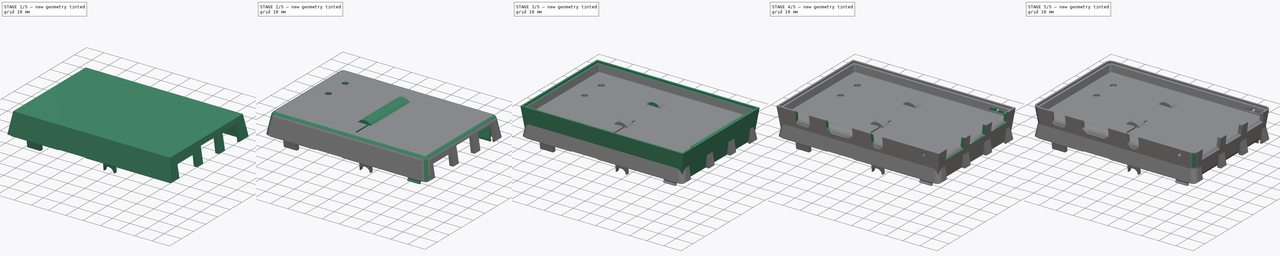
[diagram: build sequence overview — one tinted view per stage of 5, left to right]
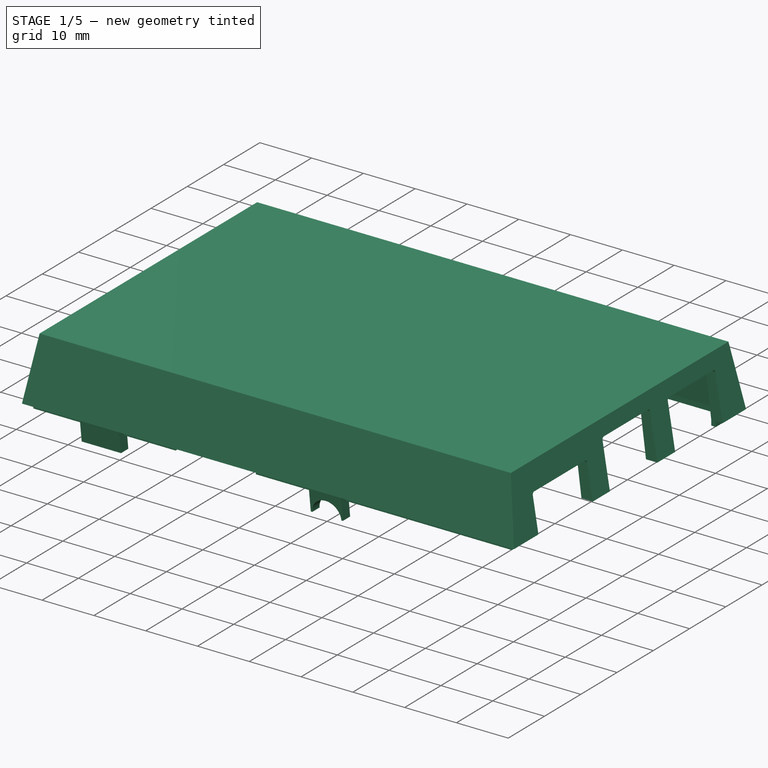
[diagram: stage 1 of 5 — iso view after this stage's code; geometry added in this stage tinted green]
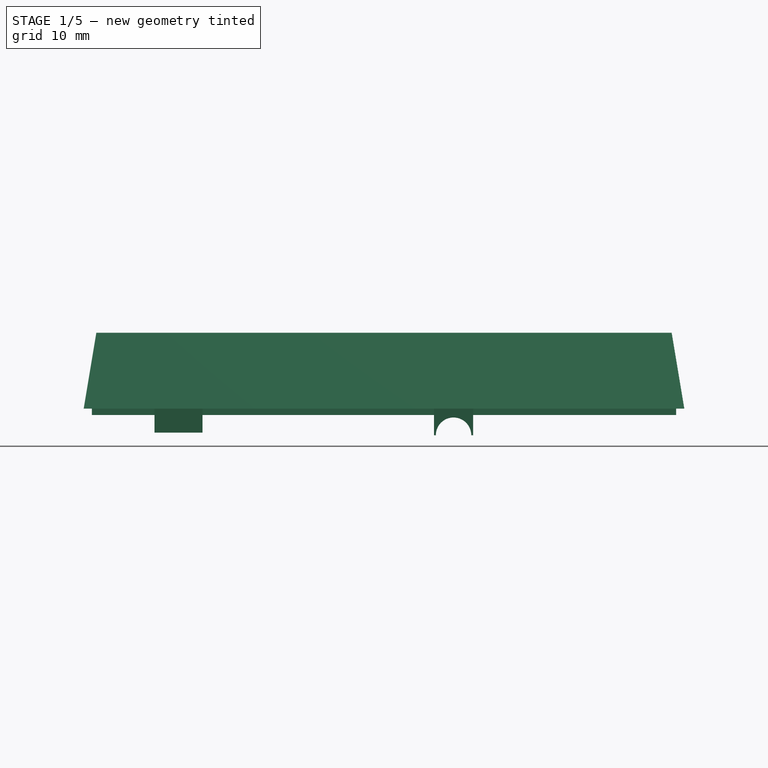
[diagram: stage 1 of 5 — front view after this stage's code; geometry added in this stage tinted green]
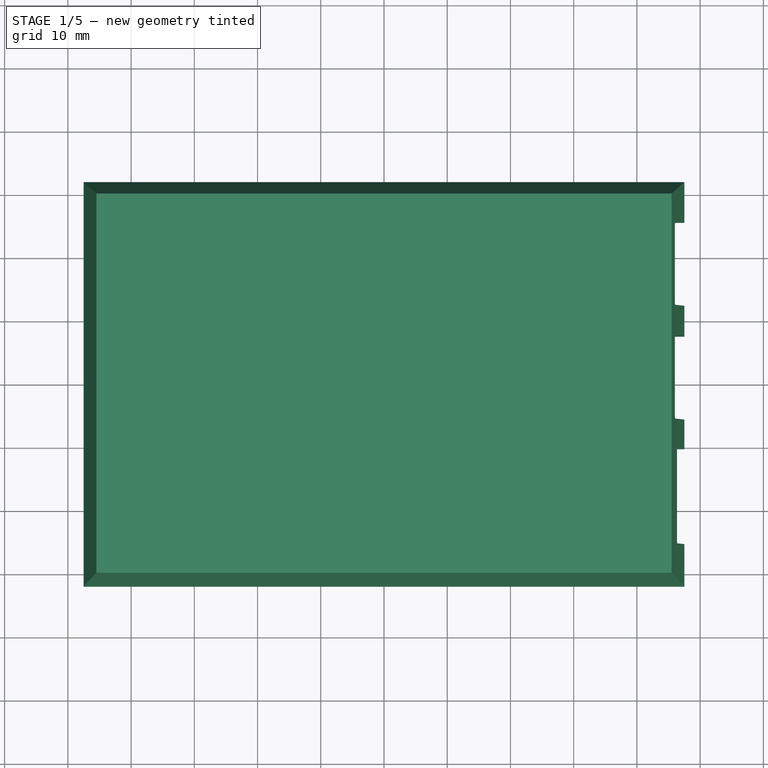
[diagram: stage 1 of 5 — top view after this stage's code; geometry added in this stage tinted green]
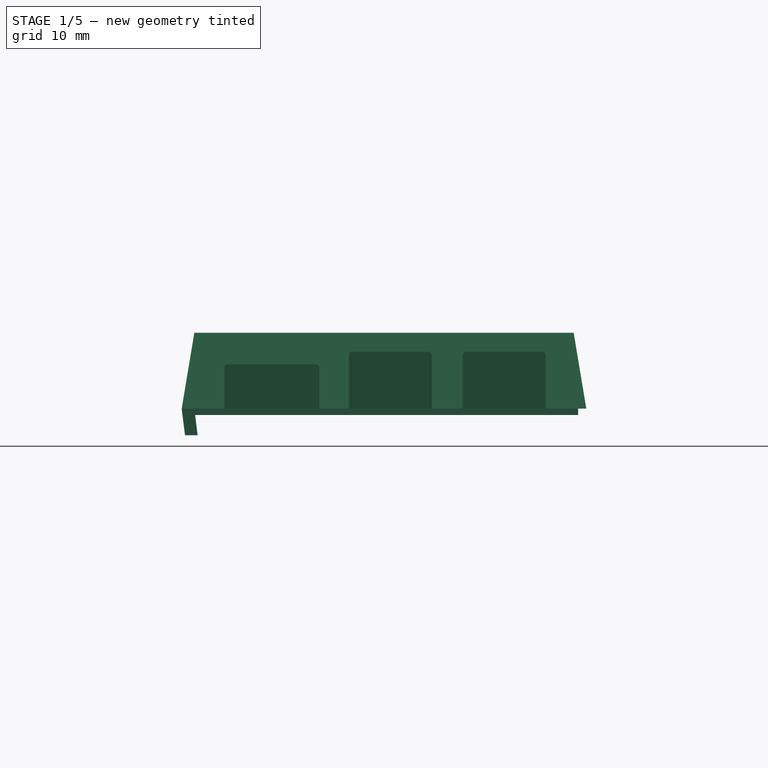
[diagram: stage 1 of 5 — right view after this stage's code; geometry added in this stage tinted green]
FCSTD DOCUMENT  (FreeCAD 0.21R33771 (Git))
Label: _Raspi3CamCase
License: Creative Commons Attribution 4.0
LicenseURL: https://creativecommons.org/licenses/by/4.0/
objects: Sketcher::SketchObject×38, PartDesign::Pocket×20, PartDesign::Pad×7, PartDesign::Fillet×6, PartDesign::Hole×3, PartDesign::Body×3, PartDesign::AdditiveLoft×2, PartDesign::SubtractiveLoft×2, PartDesign::Chamfer×2, Part::Feature×1
note: 126 computed .brp shape members not serialized (recipe doc carries the construction recipe); baked Part::Feature solids carry a one-line shape summary decoded from their .brp

FEATURE [Sketcher::SketchObject] Sketch015
  FullyConstrained = true
  MapMode = 5
  Support = -> [XY_Plane001]
  sketch-geometry (4):
    g0: LineSegment StartX=-47.5 StartY=32 StartZ=0 EndX=47.5 EndY=32 EndZ=0
    g1: LineSegment StartX=47.5 StartY=32 StartZ=0 EndX=47.5 EndY=-32 EndZ=0
    g2: LineSegment StartX=47.5 StartY=-32 StartZ=0 EndX=-47.5 EndY=-32 EndZ=0
    g3: LineSegment StartX=-47.5 StartY=-32 StartZ=0 EndX=-47.5 EndY=32 EndZ=0
  constraints (11):
    c: Horizontal(g0)
    c: Horizontal(g2)
    c: Vertical(g1)
    c: Vertical(g3)
    c: DistanceX(g3,g1) = 95
    c: DistanceY(g2,g0) = 64
    c: Coincident(g3,g0)
    c: Coincident(g0,g1)
    c: Coincident(g1,g2)
    c: Coincident(g3,g2)
    c: Symmetric(g0,g2,g-1)
FEATURE [Sketcher::SketchObject] Sketch016
  AttachmentOffset = pos=(0,0,12) rot=(0,0,1;0rad)
  FullyConstrained = true
  MapMode = 5
  Placement = pos=(0,0,12) rot=(0,0,1;0rad)
  Support = -> [XY_Plane001]
  sketch-geometry (4):
    g0: LineSegment StartX=-45.5 StartY=30 StartZ=0 EndX=45.5 EndY=30 EndZ=0
    g1: LineSegment StartX=45.5 StartY=30 StartZ=0 EndX=45.5 EndY=-30 EndZ=0
    g2: LineSegment StartX=45.5 StartY=-30 StartZ=0 EndX=-45.5 EndY=-30 EndZ=0
    g3: LineSegment StartX=-45.5 StartY=-30 StartZ=0 EndX=-45.5 EndY=30 EndZ=0
  constraints (11):
    c: Horizontal(g0)
    c: Horizontal(g2)
    c: Vertical(g1)
    c: Vertical(g3)
    c: DistanceX(g3,g1) = 91
    c: DistanceY(g2,g0) = 60
    c: Coincident(g3,g0)
    c: Coincident(g0,g1)
    c: Coincident(g1,g2)
    c: Coincident(g3,g2)
    c: Symmetric(g0,g2,g-1)
FEATURE [PartDesign::AdditiveLoft] AdditiveLoft001
  Closed = false
  Profile = -> Sketch015
  Refine = true
  Ruled = false
  Sections = -> [Sketch016]
FEATURE [Sketcher::SketchObject] Sketch017
  FullyConstrained = true
  MapMode = 5
  Support = -> [XY_Plane001]
  sketch-geometry (4):
    g0: LineSegment StartX=-45.3 StartY=29.8 StartZ=0 EndX=45.3 EndY=29.8 EndZ=0
    g1: LineSegment StartX=45.3 StartY=29.8 StartZ=0 EndX=45.3 EndY=-29.8 EndZ=0
    g2: LineSegment StartX=45.3 StartY=-29.8 StartZ=0 EndX=-45.3 EndY=-29.8 EndZ=0
    g3: LineSegment StartX=-45.3 StartY=-29.8 StartZ=0 EndX=-45.3 EndY=29.8 EndZ=0
  constraints (11):
    c: Horizontal(g0)
    c: Horizontal(g2)
    c: Vertical(g1)
    c: Vertical(g3)
    c: DistanceX(g3,g1) = 90.6
    c: DistanceY(g2,g0) = 59.6
    c: Coincident(g3,g0)
    c: Coincident(g0,g1)
    c: Coincident(g1,g2)
    c: Coincident(g3,g2)
    c: Symmetric(g0,g2,g-1)
FEATURE [Sketcher::SketchObject] Sketch018
  AttachmentOffset = pos=(0,0,10.8) rot=(0,0,1;0rad)
  FullyConstrained = true
  MapMode = 5
  Placement = pos=(0,0,10.8) rot=(0,0,1;0rad)
  Support = -> [XY_Plane001]
  sketch-geometry (4):
    g0: LineSegment StartX=-43.95 StartY=28.45 StartZ=0 EndX=43.95 EndY=28.45 EndZ=0
    g1: LineSegment StartX=43.95 StartY=28.45 StartZ=0 EndX=43.95 EndY=-28.45 EndZ=0
    g2: LineSegment StartX=43.95 StartY=-28.45 StartZ=0 EndX=-43.95 EndY=-28.45 EndZ=0
    g3: LineSegment StartX=-43.95 StartY=-28.45 StartZ=0 EndX=-43.95 EndY=28.45 EndZ=0
  constraints (11):
    c: Horizontal(g0)
    c: Horizontal(g2)
    c: Vertical(g1)
    c: Vertical(g3)
    c: DistanceX(g3,g1) = 87.9
    c: DistanceY(g2,g0) = 56.9
    c: Coincident(g3,g0)
    c: Coincident(g0,g1)
    c: Coincident(g1,g2)
    c: Coincident(g3,g2)
    c: Symmetric(g0,g2,g-1)
FEATURE [PartDesign::SubtractiveLoft] SubtractiveLoft001
  BaseFeature = -> AdditiveLoft001
  Closed = false
  Profile = -> Sketch018
  Refine = true
  Ruled = false
  Sections = -> [Sketch017]
FEATURE [Sketcher::SketchObject] Sketch019
  FullyConstrained = true
  MapMode = 5
  Support = -> [XY_Plane001]
  sketch-geometry (12):
    g0: LineSegment StartX=-45.3 StartY=29.8 StartZ=0 EndX=45.3 EndY=29.8 EndZ=0
    g1: LineSegment StartX=45.3 StartY=29.8 StartZ=0 EndX=45.3 EndY=25.25 EndZ=0
    g2: LineSegment StartX=45.3 StartY=-29.8 StartZ=0 EndX=-45.3 EndY=-29.8 EndZ=0
    g3: LineSegment StartX=-45.3 StartY=-29.8 StartZ=0 EndX=-45.3 EndY=29.8 EndZ=0
    g4: LineSegment StartX=-46.2 StartY=30.7 StartZ=0 EndX=46.2 EndY=30.7 EndZ=0
    g5: LineSegment StartX=46.2 StartY=30.7 StartZ=0 EndX=46.2 EndY=25.25 EndZ=0
    g6: LineSegment StartX=46.2 StartY=-30.7 StartZ=0 EndX=-46.2 EndY=-30.7 EndZ=0
    g7: LineSegment StartX=-46.2 StartY=-30.7 StartZ=0 EndX=-46.2 EndY=30.7 EndZ=0
    g8: LineSegment StartX=45.3 StartY=-25.25 StartZ=0 EndX=46.2 EndY=-25.25 EndZ=0
    g9: LineSegment StartX=45.3 StartY=25.25 StartZ=0 EndX=46.2 EndY=25.25 EndZ=0
    g10: LineSegment StartX=46.2 StartY=-25.25 StartZ=0 EndX=46.2 EndY=-30.7 EndZ=0
    g11: LineSegment StartX=45.3 StartY=-25.25 StartZ=0 EndX=45.3 EndY=-29.8 EndZ=0
  constraints (32):
    c: Coincident(g0,g1)
    c: Coincident(g11,g2)
    c: Coincident(g2,g3)
    c: Coincident(g3,g0)
    c: Horizontal(g0)
    c: Vertical(g1)
    c: Vertical(g3)
    c: Coincident(g4,g5)
    c: Coincident(g10,g6)
    c: Coincident(g6,g7)
    c: Coincident(g7,g4)
    c: Horizontal(g4)
    c: Vertical(g5)
    c: Vertical(g7)
    c: Symmetric(g2,g0,g-1)
    c: Symmetric(g4,g6,g-1)
    c: DistanceY(g7,g7) = 61.4
    c: DistanceX(g4,g4) = 92.4
    c: DistanceY(g3,g3) = 59.6
    c: DistanceX(g0,g0) = 90.6
    c: Horizontal(g8)
    c: Horizontal(g9)
    c: Symmetric(g8,g9,g-1)
    c: DistanceY(g8,g9) = 50.5
    c: PointOnObject(g5,g9)
    c: Coincident(g10,g8)
    c: Coincident(g1,g9)
    c: Coincident(g11,g8)
    c: Vertical(g5,g8)
    c: Vertical(g8,g1)
    c: Symmetric(g4,g6,g-1)
    c: Symmetric(g2,g0,g-1)
FEATURE [PartDesign::Pad] Pad001
  BaseFeature = -> SubtractiveLoft001
  Direction = (0,0,1)
  Length = 1
  Length2 = 10
  Profile = -> Sketch019
  ReferenceAxis = -> Sketch019 [N_Axis]
  Refine = true
  Reversed = true
  Type = 0
FEATURE [Sketcher::SketchObject] Sketch020
  FullyConstrained = true
  MapMode = 5
  Placement = pos=(0,0,0) rot=(0.57735,0.57735,0.57735;2.0944rad)
  Support = -> [YZ_Plane001]
  sketch-geometry (24):
    g0: LineSegment StartX=-24.75 StartY=7 StartZ=0 EndX=-10.75 EndY=7 EndZ=0
    g1: LineSegment StartX=-10.25 StartY=6.5 StartZ=0 EndX=-10.25 EndY=-1.5 EndZ=0
    g2: LineSegment StartX=-10.25 StartY=-1.5 StartZ=0 EndX=-25.25 EndY=-1.5 EndZ=0
    g3: LineSegment StartX=-25.25 StartY=-1.5 StartZ=0 EndX=-25.25 EndY=6.5 EndZ=0
    g4: LineSegment StartX=-5.05 StartY=9 StartZ=0 EndX=7.05 EndY=9 EndZ=0
    g5: LineSegment StartX=7.55 StartY=8.5 StartZ=0 EndX=7.55 EndY=-1.5 EndZ=0
    g6: LineSegment StartX=7.55 StartY=-1.5 StartZ=0 EndX=-5.55 EndY=-1.5 EndZ=0
    g7: LineSegment StartX=-5.55 StartY=-1.5 StartZ=0 EndX=-5.55 EndY=8.5 EndZ=0
    g8: LineSegment StartX=12.95 StartY=9 StartZ=0 EndX=25.05 EndY=9 EndZ=0
    g9: LineSegment StartX=25.55 StartY=8.5 StartZ=0 EndX=25.55 EndY=-1.5 EndZ=0
    g10: LineSegment StartX=25.55 StartY=-1.5 StartZ=0 EndX=12.45 EndY=-1.5 EndZ=0
    g11: LineSegment StartX=12.45 StartY=-1.5 StartZ=0 EndX=12.45 EndY=8.5 EndZ=0
    g12: ArcOfCircle CenterX=-24.75 CenterY=6.5 CenterZ=0 NormalX=0 NormalY=0 NormalZ=1 AngleXU=0 Radius=0.5 StartAngle=1.5708 EndAngle=3.14159
    g13: GeomPoint X=-25.25 Y=7 Z=0
    g14: ArcOfCircle CenterX=-10.75 CenterY=6.5 CenterZ=0 NormalX=0 NormalY=0 NormalZ=1 AngleXU=0 Radius=0.5 StartAngle=6e-16 EndAngle=1.5708
    g15: GeomPoint X=-10.25 Y=7 Z=0
    g16: ArcOfCircle CenterX=-5.05 CenterY=8.5 CenterZ=0 NormalX=0 NormalY=0 NormalZ=1 AngleXU=0 Radius=0.5 StartAngle=1.5708 EndAngle=3.14159
    g17: GeomPoint X=-5.55 Y=9 Z=0
    g18: ArcOfCircle CenterX=7.05 CenterY=8.5 CenterZ=0 NormalX=0 NormalY=0 NormalZ=1 AngleXU=0 Radius=0.5 StartAngle=-1.8e-15 EndAngle=1.5708
    g19: GeomPoint X=7.55 Y=9 Z=0
    g20: ArcOfCircle CenterX=12.95 CenterY=8.5 CenterZ=0 NormalX=0 NormalY=0 NormalZ=1 AngleXU=0 Radius=0.5 StartAngle=1.5708 EndAngle=3.14159
    g21: GeomPoint X=12.45 Y=9 Z=0
    g22: ArcOfCircle CenterX=25.05 CenterY=8.5 CenterZ=0 NormalX=0 NormalY=0 NormalZ=1 AngleXU=0 Radius=0.5 StartAngle=0 EndAngle=1.5708
    g23: GeomPoint X=25.55 Y=9 Z=0
  constraints (60):
    c: Coincident(g1,g2)
    c: Coincident(g2,g3)
    c: Horizontal(g0)
    c: Horizontal(g2)
    c: Vertical(g1)
    c: Vertical(g3)
    c: Coincident(g5,g6)
    c: Coincident(g6,g7)
    c: Horizontal(g4)
    c: Horizontal(g6)
    c: Vertical(g5)
    c: Vertical(g7)
    c: Coincident(g9,g10)
    c: Coincident(g10,g11)
    c: Horizontal(g8)
    c: Horizontal(g10)
    c: Vertical(g9)
    c: Vertical(g11)
    c: Horizontal(g10,g5)
    c: Horizontal(g6,g1)
    c: DistanceY(g2,g-1) = 1.5
    c: DistanceX(g13,g-1) = 25.25
    c: DistanceX(g2,g2) = 15
    c: DistanceX(g17,g-1) = 5.55
    c: DistanceX(g6,g6) = 13.1
    c: Equal(g6,g10)
    c: DistanceX(g-1,g23) = 25.55
    c: Horizontal(g19,g21)
    c: DistanceY(g-1,g23) = 9
    c: DistanceY(g-1,g13) = 7
    c: PointOnObject(g13,g0)
    c: PointOnObject(g13,g3)
    c: Tangent(g0,g12) = 1.5708
    c: Tangent(g3,g12) = 1.5708
    c: PointOnObject(g15,g0)
    c: PointOnObject(g15,g1)
    c: Tangent(g0,g14) = 1.5708
    c: Tangent(g1,g14) = 1.5708
    c: PointOnObject(g17,g4)
    c: PointOnObject(g17,g7)
    c: Tangent(g4,g16) = 1.5708
    c: Tangent(g7,g16) = 1.5708
    c: PointOnObject(g19,g4)
    c: PointOnObject(g19,g5)
    c: Tangent(g4,g18) = 1.5708
    c: Tangent(g5,g18) = 1.5708
    c: PointOnObject(g21,g8)
    c: PointOnObject(g21,g11)
    c: Tangent(g8,g20) = 1.5708
    c: Tangent(g11,g20) = 1.5708
    c: PointOnObject(g23,g8)
    c: PointOnObject(g23,g9)
    c: Tangent(g8,g22) = 1.5708
    c: Tangent(g9,g22) = 1.5708
    c: Equal(g22,g20)
    c: Equal(g20,g18)
    c: Equal(g18,g16)
    c: Equal(g16,g14)
    c: Equal(g14,g12)
    c: Radius(g18) = 0.5
FEATURE [PartDesign::Pocket] Pocket009  label="Pocket_UsbNet"
  BaseFeature = -> Pad001
  Direction = (-1,3e-16,-3e-16)
  Length = 5
  Length2 = 5
  Profile = -> Sketch020
  ReferenceAxis = -> Sketch020 [N_Axis]
  Refine = true
  Reversed = true
  Type = 1
FEATURE [Sketcher::SketchObject] Sketch021
  AttachmentOffset = pos=(0,0,-32.5) rot=(0,0,1;0rad)
  FullyConstrained = true
  MapMode = 5
  Placement = pos=(-32.5,7.2e-15,-7.2e-15) rot=(0.57735,0.57735,0.57735;2.0944rad)
  Support = -> [YZ_Plane001]
  sketch-geometry (4):
    g0: LineSegment StartX=-32 StartY=0 StartZ=0 EndX=-31.524 EndY=-3.8 EndZ=0
    g1: LineSegment StartX=-31.524 StartY=-3.8 StartZ=0 EndX=-29.524 EndY=-3.8 EndZ=0
    g2: LineSegment StartX=-29.524 StartY=-3.8 StartZ=0 EndX=-30 EndY=0 EndZ=0
    g3: LineSegment StartX=-30 StartY=0 StartZ=0 EndX=-32 EndY=0 EndZ=0
  constraints (12):
    c: PointOnObject(g0,g-1)
    c: Coincident(g0,g1)
    c: Horizontal(g1)
    c: Coincident(g1,g2)
    c: PointOnObject(g2,g-1)
    c: Coincident(g2,g3)
    c: Coincident(g3,g0)
    c: Equal(g3,g1)
    c: Angle(g2,g-1) = 1.44618
    c: DistanceX(g2,g-1) = 30
    c: DistanceX(g1,g1) = 2
    c: DistanceY(g0,g0) = 3.8
FEATURE [Sketcher::SketchObject] Sketch022
  AttachmentOffset = pos=(0,0,-11) rot=(0,0,1;0rad)
  FullyConstrained = true
  MapMode = 5
  Placement = pos=(-11,2.4e-15,-2.4e-15) rot=(0.57735,0.57735,0.57735;2.0944rad)
  Support = -> [YZ_Plane001]
  sketch-geometry (4):
    g0: LineSegment StartX=-32 StartY=0 StartZ=0 EndX=-31.8121 EndY=-1.5 EndZ=0
    g1: LineSegment StartX=-31.8121 StartY=-1.5 StartZ=0 EndX=-29.6121 EndY=-1.5 EndZ=0
    g2: LineSegment StartX=-29.6121 StartY=-1.5 StartZ=0 EndX=-29.8 EndY=0 EndZ=0
    g3: LineSegment StartX=-29.8 StartY=0 StartZ=0 EndX=-32 EndY=0 EndZ=0
  constraints (12):
    c: PointOnObject(g0,g-1)
    c: Coincident(g0,g1)
    c: Horizontal(g1)
    c: Coincident(g1,g2)
    c: PointOnObject(g2,g-1)
    c: Coincident(g2,g3)
    c: Coincident(g3,g0)
    c: Equal(g3,g1)
    c: Angle(g2,g-1) = 1.44618
    c: DistanceX(g1,g1) = 2.2
    c: DistanceY(g0,g0) = 1.5
    c: DistanceX(g0,g-1) = 32
FEATURE [PartDesign::Pad] Pad002  label="Pad_PowerPlug"
  BaseFeature = -> Pocket009
  Direction = (1,0,0)
  Length = 7.6
  Length2 = 10
  Midplane = true
  Profile = -> Sketch021
  ReferenceAxis = -> Sketch021 [N_Axis]
  Refine = true
  Type = 0
FEATURE [Sketcher::SketchObject] Sketch023
  AttachmentOffset = pos=(0,0,11) rot=(0,0,1;0rad)
  FullyConstrained = true
  MapMode = 5
  Placement = pos=(11,-2.4e-15,2.4e-15) rot=(0.57735,0.57735,0.57735;2.0944rad)
  Support = -> [YZ_Plane001]
  sketch-geometry (4):
    g0: LineSegment StartX=-32 StartY=0 StartZ=0 EndX=-31.4739 EndY=-4.2 EndZ=0
    g1: LineSegment StartX=-31.4739 StartY=-4.2 StartZ=0 EndX=-29.4739 EndY=-4.2 EndZ=0
    g2: LineSegment StartX=-29.4739 StartY=-4.2 StartZ=0 EndX=-30 EndY=0 EndZ=0
    g3: LineSegment StartX=-30 StartY=0 StartZ=0 EndX=-32 EndY=0 EndZ=0
  constraints (12):
    c: PointOnObject(g0,g-1)
    c: Coincident(g0,g1)
    c: Horizontal(g1)
    c: Coincident(g1,g2)
    c: PointOnObject(g2,g-1)
    c: Coincident(g2,g3)
    c: Coincident(g3,g0)
    c: Equal(g3,g1)
    c: Angle(g2,g-1) = 1.44618
    c: DistanceX(g2,g-1) = 30
    c: DistanceX(g1,g1) = 2
    c: DistanceY(g0,g0) = 4.2
FEATURE [PartDesign::Pocket] Pocket010
  BaseFeature = -> Pad002
  Direction = (-1,2e-16,-3e-16)
  Length = 15.5
  Length2 = 5
  Midplane = true
  Profile = -> Sketch022
  ReferenceAxis = -> Sketch022 [N_Axis]
  Refine = true
  Type = 0
FEATURE [PartDesign::Pad] Pad003
  BaseFeature = -> Pocket010
  Direction = (1,-2e-16,3e-16)
  Length = 6.2
  Length2 = 10
  Midplane = true
  Profile = -> Sketch023
  ReferenceAxis = -> Sketch023 [N_Axis]
  Refine = true
  Type = 0
FEATURE [Sketcher::SketchObject] Sketch024
  FullyConstrained = true
  MapMode = 5
  Placement = pos=(0,0,0) rot=(1,0,0;1.5708rad)
  Support = -> [XZ_Plane001]
  sketch-geometry (1):
    g0: Circle CenterX=11 CenterY=-4.2 CenterZ=0 NormalX=0 NormalY=0 NormalZ=1 AngleXU=0 Radius=2.8
  constraints (3):
    c: Diameter(g0) = 5.6
    c: DistanceX(g-1,g0) = 11
    c: DistanceY(g0,g-1) = 4.2
FEATURE [PartDesign::Pocket] Pocket011
  BaseFeature = -> Pad003
  Direction = (0,1,2e-16)
  Length = 5
  Length2 = 5
  Profile = -> Sketch024
  ReferenceAxis = -> Sketch024 [N_Axis]
  Refine = true
  Reversed = true
  Type = 1
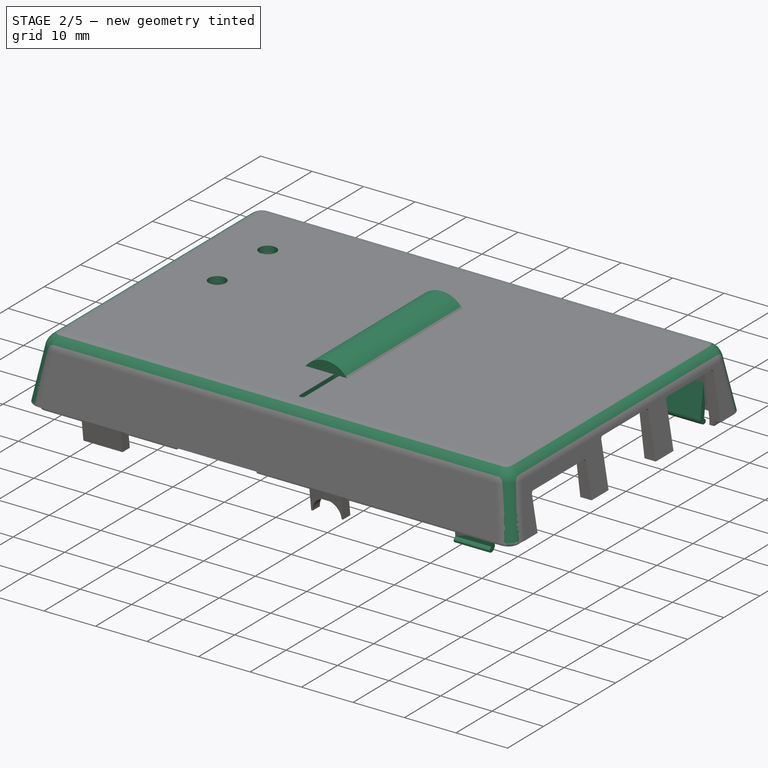
[diagram: stage 2 of 5 — iso view after this stage's code; geometry added in this stage tinted green]
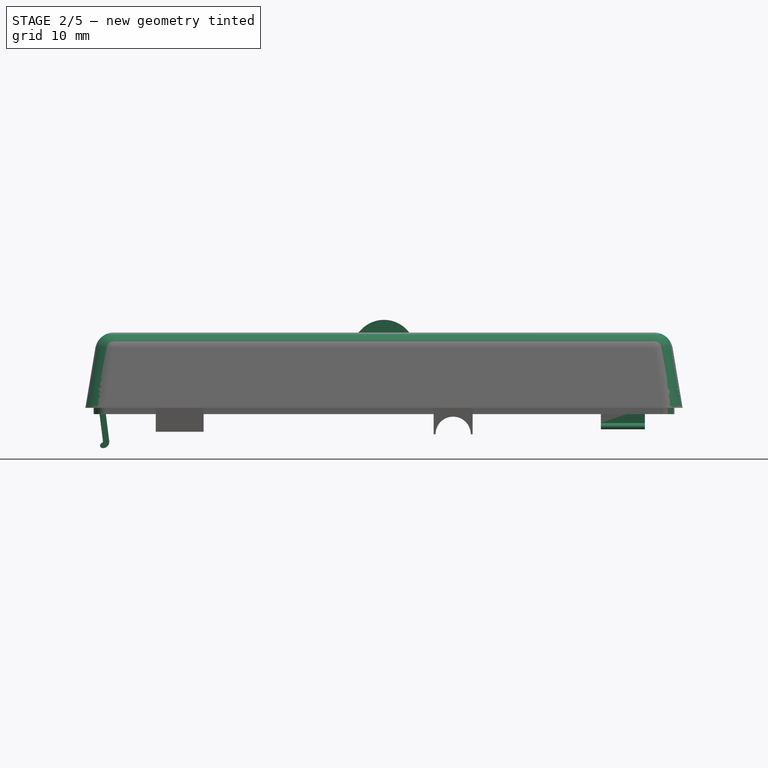
[diagram: stage 2 of 5 — front view after this stage's code; geometry added in this stage tinted green]
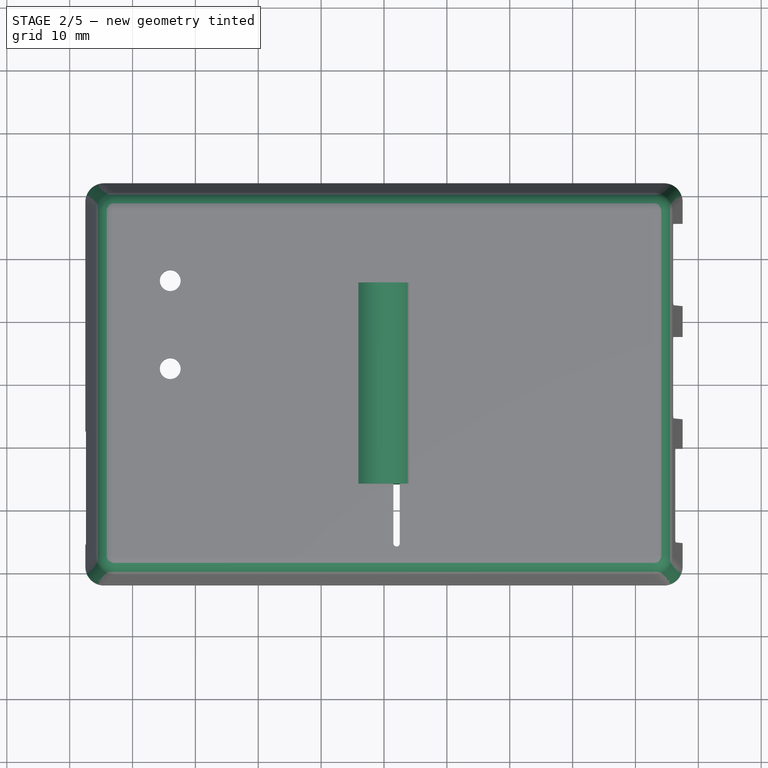
[diagram: stage 2 of 5 — top view after this stage's code; geometry added in this stage tinted green]
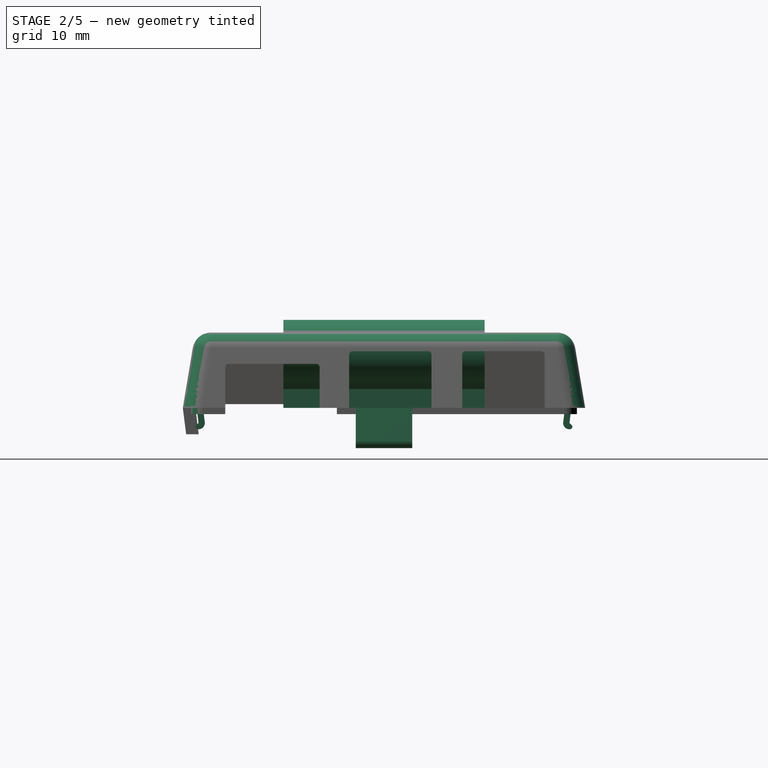
[diagram: stage 2 of 5 — right view after this stage's code; geometry added in this stage tinted green]
FEATURE [Sketcher::SketchObject] Sketch025
  AttachmentOffset = pos=(0,0,38) rot=(0,0,1;0rad)
  FullyConstrained = true
  MapMode = 5
  Placement = pos=(38,-8.4e-15,8.4e-15) rot=(0.57735,0.57735,0.57735;2.0944rad)
  Support = -> [YZ_Plane001]
  sketch-geometry (12):
    g0: LineSegment StartX=-29.8316 StartY=-2.7034 StartZ=0 EndX=-29.5 EndY=-2.40334 EndZ=0
    g1: LineSegment StartX=-29.5 StartY=-2.40334 StartZ=0 EndX=-30.6153 EndY=6.5 EndZ=0
    g2: LineSegment StartX=-30.6153 StartY=6.5 StartZ=0 EndX=-29.6075 EndY=6.5 EndZ=0
    g3: LineSegment StartX=-29.6075 StartY=6.5 StartZ=0 EndX=-28.5078 EndY=-2.27905 EndZ=0
    g4: ArcOfCircle CenterX=-29.5 CenterY=-2.40334 CenterZ=0 NormalX=0 NormalY=0 NormalZ=1 AngleXU=0 Radius=1 StartAngle=4.6068 EndAngle=6.4078
    g5: ArcOfCircle CenterX=-29.5632 CenterY=-3 CenterZ=0 NormalX=0 NormalY=0 NormalZ=1 AngleXU=0 Radius=0.4 StartAngle=2.30628 EndAngle=4.6068
    g6: LineSegment StartX=29.8316 StartY=-2.7034 StartZ=0 EndX=29.5 EndY=-2.40334 EndZ=0
    g7: LineSegment StartX=29.5 StartY=-2.40334 StartZ=0 EndX=30.6153 EndY=6.5 EndZ=0
    g8: LineSegment StartX=30.6153 StartY=6.5 StartZ=0 EndX=29.6075 EndY=6.5 EndZ=0
    g9: LineSegment StartX=29.6075 StartY=6.5 StartZ=0 EndX=28.5078 EndY=-2.27905 EndZ=0
    g10: ArcOfCircle CenterX=29.5 CenterY=-2.40334 CenterZ=0 NormalX=0 NormalY=0 NormalZ=1 AngleXU=0 Radius=1 StartAngle=3.01698 EndAngle=4.81798
    g11: ArcOfCircle CenterX=29.5632 CenterY=-3 CenterZ=0 NormalX=0 NormalY=0 NormalZ=1 AngleXU=0 Radius=0.4 StartAngle=4.81798 EndAngle=7.1185
  constraints (30):
    c: Coincident(g0,g1)
    c: Coincident(g1,g2)
    c: Coincident(g2,g3)
    c: Horizontal(g2)
    c: Angle(g-1,g1) = 1.69541
    c: Parallel(g1,g3)
    c: Coincident(g4,g0)
    c: Tangent(g3,g4) = 1.5708
    c: DistanceY(g-1,g1) = 6.5
    c: Tangent(g0,g5) = 1.5708
    c: Tangent(g4,g5) = -1.5708
    c: Radius(g5) = 0.4
    c: Distance(g0,g3) = 1
    c: DistanceX(g0,g-1) = 29.5
    c: Angle(g1,g0) = 2.18166
    c: DistanceY(g5,g-1) = 3
    c: Coincident(g6,g7)
    c: Coincident(g7,g8)
    c: Coincident(g8,g9)
    c: Horizontal(g8)
    c: Parallel(g7,g9)
    c: Coincident(g10,g6)
    c: Tangent(g9,g10) = -1.5708
    c: Tangent(g6,g11) = -1.5708
    c: Tangent(g10,g11) = -1.5708
    c: Radius(g11) = 0.4
    c: Distance(g6,g9) = 1
    c: Angle(g7,g6) = -2.18166
    c: Symmetric(g2,g8,g-2)
    c: Symmetric(g11,g5,g-2)
FEATURE [PartDesign::Pad] Pad004
  BaseFeature = -> Pocket011
  Direction = (1,-2e-16,3e-16)
  Length = 7
  Length2 = 10
  Midplane = true
  Profile = -> Sketch025
  ReferenceAxis = -> Sketch025 [N_Axis]
  Refine = true
  Type = 0
FEATURE [Sketcher::SketchObject] Sketch026
  FullyConstrained = true
  MapMode = 5
  Placement = pos=(0,0,0) rot=(1,0,0;1.5708rad)
  Support = -> [XZ_Plane001]
  sketch-geometry (6):
    g0: LineSegment StartX=-45.0316 StartY=-5.7034 StartZ=0 EndX=-44.7 EndY=-5.40334 EndZ=0
    g1: LineSegment StartX=-44.7 StartY=-5.40334 StartZ=0 EndX=-46.1911 EndY=6.5 EndZ=0
    g2: LineSegment StartX=-46.1911 StartY=6.5 StartZ=0 EndX=-45.1833 EndY=6.5 EndZ=0
    g3: LineSegment StartX=-45.1833 StartY=6.5 StartZ=0 EndX=-43.7078 EndY=-5.27905 EndZ=0
    g4: ArcOfCircle CenterX=-44.7 CenterY=-5.40334 CenterZ=0 NormalX=0 NormalY=0 NormalZ=1 AngleXU=0 Radius=1 StartAngle=4.6068 EndAngle=6.4078
    g5: ArcOfCircle CenterX=-44.7632 CenterY=-6 CenterZ=0 NormalX=0 NormalY=0 NormalZ=1 AngleXU=0 Radius=0.4 StartAngle=2.30628 EndAngle=4.6068
  constraints (16):
    c: Coincident(g0,g1)
    c: Coincident(g1,g2)
    c: Coincident(g2,g3)
    c: Horizontal(g2)
    c: Angle(g-1,g1) = 1.69541
    c: Parallel(g1,g3)
    c: Coincident(g4,g0)
    c: Tangent(g3,g4) = 1.5708
    c: DistanceY(g-1,g1) = 6.5
    c: Tangent(g0,g5) = 1.5708
    c: Tangent(g4,g5) = -1.5708
    c: Radius(g5) = 0.4
    c: Distance(g0,g3) = 1
    c: DistanceX(g0,g-1) = 44.7
    c: Angle(g1,g0) = 2.18166
    c: DistanceY(g5,g-1) = 6
FEATURE [PartDesign::Pad] Pad005
  BaseFeature = -> Pad004
  Direction = (0,-1,-2e-16)
  Length = 9
  Length2 = 10
  Midplane = true
  Profile = -> Sketch026
  ReferenceAxis = -> Sketch026 [N_Axis]
  Refine = true
  Type = 0
FEATURE [Sketcher::SketchObject] Sketch027
  FullyConstrained = true
  MapMode = 5
  Support = -> [XY_Plane001]
  sketch-geometry (5):
    g0: ArcOfCircle CenterX=2 CenterY=-7.5 CenterZ=0 NormalX=0 NormalY=0 NormalZ=1 AngleXU=0 Radius=0.5 StartAngle=9.2e-15 EndAngle=3.14159
    g1: ArcOfCircle CenterX=2 CenterY=-25.5 CenterZ=0 NormalX=0 NormalY=0 NormalZ=1 AngleXU=0 Radius=0.5 StartAngle=3.14159 EndAngle=6.28319
    g2: LineSegment StartX=1.5 StartY=-7.5 StartZ=0 EndX=1.5 EndY=-25.5 EndZ=0
    g3: LineSegment StartX=2.5 StartY=-25.5 StartZ=0 EndX=2.5 EndY=-7.5 EndZ=0
    g4: GeomPoint X=2 Y=-16.5 Z=0
  constraints (11):
    c: Tangent(g0,g2) = -1.5708
    c: Tangent(g2,g1) = -1.5708
    c: Tangent(g1,g3) = -1.5708
    c: Tangent(g3,g0) = -1.5708
    c: Equal(g0,g1)
    c: Vertical(g2)
    c: DistanceY(g3,g3) = 18
    c: Symmetric(g1,g0,g4)
    c: DistanceY(g4,g-1) = 16.5
    c: DistanceX(g-1,g4) = 2
    c: DistanceX(g1,g1) = 1
FEATURE [PartDesign::Pocket] Pocket012
  BaseFeature = -> Pad005
  Direction = (0,0,-1)
  Length = 5
  Length2 = 5
  Profile = -> Sketch027
  ReferenceAxis = -> Sketch027 [N_Axis]
  Refine = true
  Reversed = true
  Type = 1
FEATURE [PartDesign::Body] Body  label="Bottom"
  Group = -> [Sketch,Sketch001,AdditiveLoft,Sketch002,Sketch003,SubtractiveLoft,Sketch004,Pocket,Sketch005,Fillet,Pocket001,Sketch006,Pocket002,Sketch007,Pocket003,Sketch008,Pad,Sketch009,Sketch010,Hole,Pocket004,Sketch011,Pocket005,Sketch012,Pocket006,Sketch013,Pocket007,Sketch014,Pocket008,Fillet001,Fillet002,Chamfer,Chamfer001,Sketch028,Pocket013,Sketch029,Pocket014]
  Origin = -> Origin
  Tip = -> Pocket014
FEATURE [PartDesign::Fillet] Fillet003
  Base = -> Pocket012 [Edge107,Edge162,Edge171,Edge170,Edge169,Edge184,Edge106,Edge155,Edge103,Edge109,Edge156,Edge175]
  BaseFeature = -> Pocket012
  Radius = 1
  SupportTransform = false
  UseAllEdges = false
FEATURE [PartDesign::Fillet] Fillet005
  Base = -> Fillet003 [Edge121,Edge212,Edge213,Edge206,Edge207,Edge120,Edge122,Edge211]
  BaseFeature = -> Fillet003
  Radius = 3
  SupportTransform = false
  UseAllEdges = false
FEATURE [PartDesign::Fillet] Fillet006
  Base = -> Fillet005 [Edge171,Edge67,Edge65,Edge59]
  BaseFeature = -> Fillet005
  Radius = 2
  SupportTransform = false
  UseAllEdges = false
FEATURE [Part::Feature] Body002  label="Backside001"
  Placement = pos=(9.5,9.3,42) rot=(0,0,1;4.71239rad)
  shape: bbox 62 x 100.4 x 18.5 mm, 169 faces (baked)
FEATURE [Sketcher::SketchObject] Sketch034
  FullyConstrained = true
  MapMode = 5
  Placement = pos=(0,0,0) rot=(0.57735,0.57735,0.57735;2.0944rad)
  Support = -> [YZ_Plane001]
  sketch-geometry (4):
    g0: LineSegment StartX=-25.5 StartY=-1.4 StartZ=0 EndX=-7.5 EndY=-1.4 EndZ=0
    g1: LineSegment StartX=-7.5 StartY=-1.4 StartZ=0 EndX=-7.5 EndY=0.6 EndZ=0
    g2: LineSegment StartX=-7.5 StartY=0.6 StartZ=0 EndX=-25.5 EndY=0.6 EndZ=0
    g3: LineSegment StartX=-25.5 StartY=0.6 StartZ=0 EndX=-25.5 EndY=-1.4 EndZ=0
  constraints (12):
    c: Coincident(g0,g1)
    c: Coincident(g1,g2)
    c: Coincident(g2,g3)
    c: Coincident(g3,g0)
    c: Horizontal(g0)
    c: Horizontal(g2)
    c: Vertical(g1)
    c: Vertical(g3)
    c: DistanceY(g-1,g1) = 0.6
    c: DistanceX(g2,g2) = 18
    c: DistanceX(g1,g-1) = 7.5
    c: DistanceY(g3,g3) = 2
FEATURE [PartDesign::Pocket] Pocket016
  BaseFeature = -> Fillet006
  Direction = (-1,2e-16,-3e-16)
  Length = 5
  Length2 = 5
  Profile = -> Sketch034
  ReferenceAxis = -> Sketch034 [N_Axis]
  Type = 1
FEATURE [Sketcher::SketchObject] Sketch035
  FullyConstrained = true
  MapMode = 5
  Placement = pos=(0,0,0) rot=(1,0,0;1.5708rad)
  Support = -> [XZ_Plane002]
  sketch-geometry (7):
    g0: LineSegment StartX=-9.53553 StartY=6.53553 StartZ=0 EndX=-3.53553 EndY=12.5355 EndZ=0
    g1: ArcOfCircle CenterX=-1.9e-15 CenterY=9 CenterZ=0 NormalX=0 NormalY=0 NormalZ=1 AngleXU=0 Radius=5 StartAngle=4.71239 EndAngle=8.63938
    g2: LineSegment StartX=-11 StartY=3 StartZ=0 EndX=-11 EndY=0 EndZ=0
    g3: LineSegment StartX=-11 StartY=0 StartZ=0 EndX=-1 EndY=0 EndZ=0
    g4: ArcOfCircle CenterX=-6 CenterY=3 CenterZ=0 NormalX=0 NormalY=0 NormalZ=1 AngleXU=0 Radius=5 StartAngle=2.35619 EndAngle=3.14159
    g5: LineSegment StartX=-1 StartY=3 StartZ=0 EndX=-1 EndY=0 EndZ=0
    g6: LineSegment StartX=-1 StartY=3 StartZ=0 EndX=-1.9e-15 EndY=4 EndZ=0
  constraints (21):
    c: Tangent(g0,g1) = 1.5708
    c: Vertical(g1,g1)
    c: Radius(g1) = 5
    c: Vertical(g2)
    c: Coincident(g2,g3)
    c: Horizontal(g3)
    c: Tangent(g2,g4) = -1.5708
    c: Tangent(g0,g4) = 1.5708
    c: Coincident(g5,g3)
    c: Vertical(g5)
    c: DistanceX(g3,g3) = 10
    c: DistanceY(g2,g2) = 3
    c: Equal(g2,g5)
    c: Angle(g3,g0) = 0.785398
    c: PointOnObject(g3,g-1)
    c: PointOnObject(g1,g-2)
    c: Coincident(g6,g5)
    c: Coincident(g6,g1)
    c: Parallel(g0,g6)
    c: DistanceX(g5,g1) = 1
    c: DistanceY(g-1,g1) = 9
FEATURE [Sketcher::SketchObject] Sketch036
  FullyConstrained = true
  MapMode = 5
  Placement = pos=(0,0,0) rot=(1,0,0;1.5708rad)
  Support = -> [XZ_Plane002]
  sketch-geometry (4):
    g0: LineSegment StartX=-14 StartY=16 StartZ=0 EndX=6 EndY=16 EndZ=0
    g1: LineSegment StartX=6 StartY=16 StartZ=0 EndX=6 EndY=4 EndZ=0
    g2: LineSegment StartX=6 StartY=4 StartZ=0 EndX=-14 EndY=4 EndZ=0
    g3: LineSegment StartX=-14 StartY=4 StartZ=0 EndX=-14 EndY=16 EndZ=0
  constraints (12):
    c: Coincident(g0,g1)
    c: Coincident(g1,g2)
    c: Coincident(g2,g3)
    c: Coincident(g3,g0)
    c: Horizontal(g0)
    c: Horizontal(g2)
    c: Vertical(g1)
    c: Vertical(g3)
    c: DistanceX(g-1,g1) = 6
    c: DistanceY(g-1,g1) = 4
    c: DistanceY(g3,g3) = 12
    c: DistanceX(g0,g0) = 20
FEATURE [PartDesign::Pad] Pad006
  Direction = (0,-1,2e-16)
  Length = 32
  Length2 = 10
  Midplane = true
  Placement = pos=(0,0,0) rot=(1,0,0;1.5708rad)
  Profile = -> Sketch035
  ReferenceAxis = -> Sketch035 [N_Axis]
  Type = 0
FEATURE [PartDesign::Body] Body003  label="Holder"
  Group = -> [Sketch035,Sketch036,Pad006,Pocket017,Sketch039,Pocket018,Sketch040,Pocket019,Sketch041,Sketch042,Hole001,Hole002]
  Origin = -> Origin002
  Placement = pos=(-28,9.3,28) rot=(0,0,1;0rad)
  Tip = -> Hole002
FEATURE [Sketcher::SketchObject] Sketch043
  FullyConstrained = true
  MapMode = 5
  Placement = pos=(0,0,12) rot=(0,0,1;0rad)
  Support = -> [Pocket016]
  sketch-geometry (2):
    g0: Circle CenterX=-34 CenterY=16.3 CenterZ=0 NormalX=0 NormalY=0 NormalZ=1 AngleXU=0 Radius=1.65
    g1: Circle CenterX=-34 CenterY=2.3 CenterZ=0 NormalX=0 NormalY=0 NormalZ=1 AngleXU=0 Radius=1.65
  constraints (6):
    c: Vertical(g1,g0)
    c: DistanceY(g1,g0) = 14
    c: Equal(g1,g0)
    c: Diameter(g1) = 3.3
    c: DistanceX(g1,g-1) = 34
    c: DistanceY(g-1,g0) = 16.3
FEATURE [PartDesign::Pocket] Pocket020
  BaseFeature = -> Pocket016
  Direction = (0,0,-1)
  Length = 5
  Length2 = 5
  Profile = -> Sketch043
  ReferenceAxis = -> Sketch043 [N_Axis]
  Type = 1
FEATURE [PartDesign::Body] Body001  label="Top"
  Group = -> [Sketch015,Sketch016,AdditiveLoft001,Sketch018,Sketch017,SubtractiveLoft001,Sketch019,Pad001,Sketch020,Pocket009,Sketch021,Sketch022,Pad002,Sketch023,Pocket010,Pad003,Sketch024,Pocket011,Sketch025,Pad004,Sketch026,Pad005,Sketch027,Pocket012,Fillet003,Fillet005,Fillet006,Sketch034,Pocket016,Sketch043,Pocket020]
  Origin = -> Origin001
  Placement = pos=(0,0,16) rot=(0,0,1;0rad)
  Tip = -> Pocket020
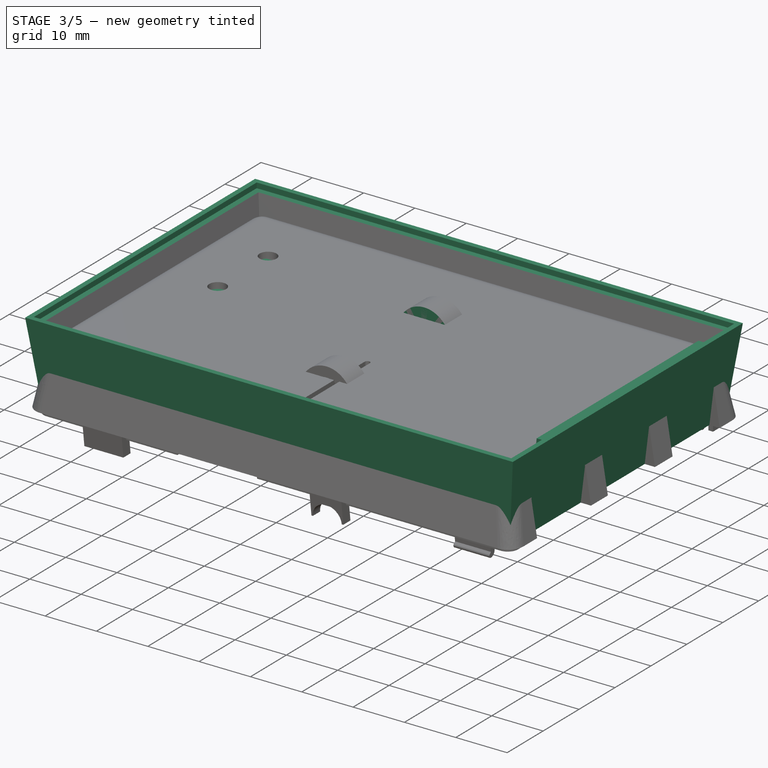
[diagram: stage 3 of 5 — iso view after this stage's code; geometry added in this stage tinted green]
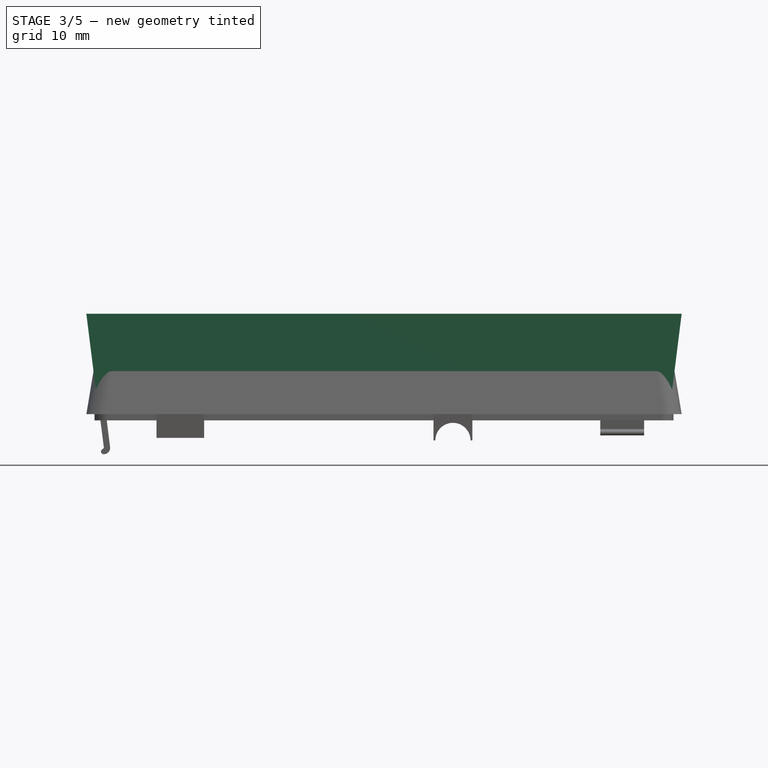
[diagram: stage 3 of 5 — front view after this stage's code; geometry added in this stage tinted green]
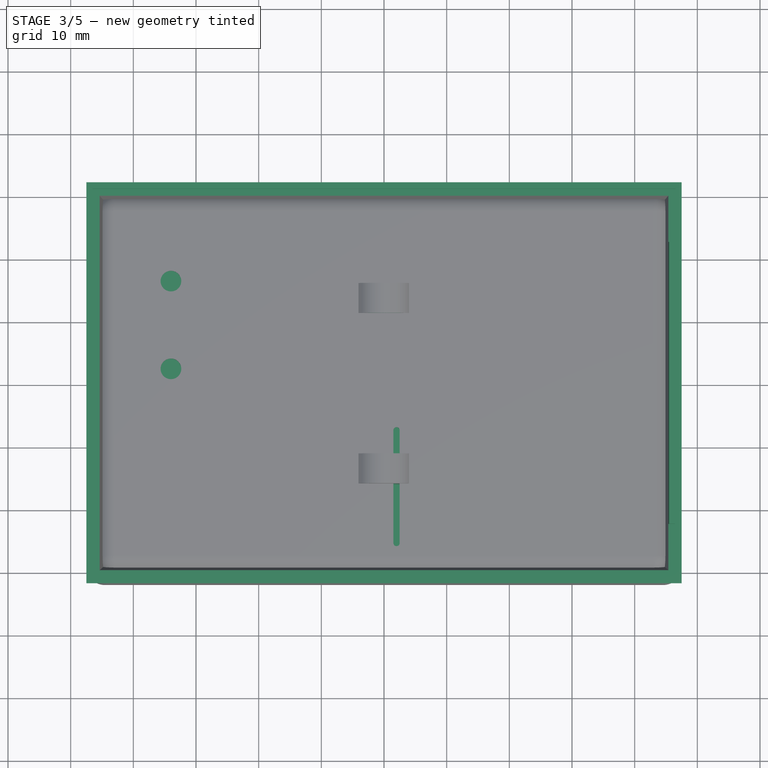
[diagram: stage 3 of 5 — top view after this stage's code; geometry added in this stage tinted green]
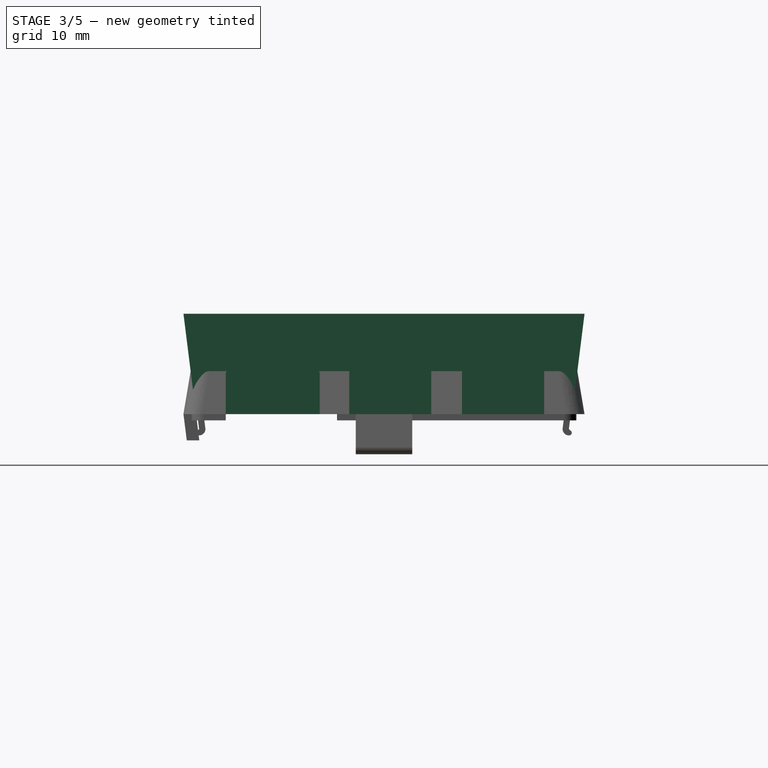
[diagram: stage 3 of 5 — right view after this stage's code; geometry added in this stage tinted green]
FEATURE [Sketcher::SketchObject] Sketch
  AttachmentOffset = pos=(0,0,16) rot=(0,0,1;0rad)
  FullyConstrained = true
  MapMode = 5
  Placement = pos=(0,0,16) rot=(0,0,1;0rad)
  Support = -> [XY_Plane]
  sketch-geometry (5):
    g0: LineSegment StartX=-47.5 StartY=-32 StartZ=0 EndX=-47.5 EndY=32 EndZ=0
    g1: LineSegment StartX=-47.5 StartY=32 StartZ=0 EndX=47.5 EndY=32 EndZ=0
    g2: LineSegment StartX=47.5 StartY=32 StartZ=0 EndX=47.5 EndY=-32 EndZ=0
    g3: LineSegment StartX=47.5 StartY=-32 StartZ=0 EndX=-47.5 EndY=-32 EndZ=0
    g4: GeomPoint X=0 Y=0 Z=0
  constraints (12):
    c: Coincident(g0,g1)
    c: Coincident(g1,g2)
    c: Coincident(g2,g3)
    c: Coincident(g3,g0)
    c: Horizontal(g1)
    c: Horizontal(g3)
    c: Vertical(g0)
    c: Vertical(g2)
    c: Symmetric(g1,g0,g4)
    c: Coincident(g4,g-1)
    c: DistanceX(g1,g1) = 95
    c: DistanceY(g0,g0) = 64
FEATURE [Sketcher::SketchObject] Sketch001
  FullyConstrained = true
  MapMode = 5
  Support = -> [XY_Plane]
  sketch-geometry (5):
    g0: LineSegment StartX=-45.5 StartY=-30 StartZ=0 EndX=-45.5 EndY=30 EndZ=0
    g1: LineSegment StartX=-45.5 StartY=30 StartZ=0 EndX=45.5 EndY=30 EndZ=0
    g2: LineSegment StartX=45.5 StartY=30 StartZ=0 EndX=45.5 EndY=-30 EndZ=0
    g3: LineSegment StartX=45.5 StartY=-30 StartZ=0 EndX=-45.5 EndY=-30 EndZ=0
    g4: GeomPoint X=0 Y=0 Z=0
  constraints (12):
    c: Coincident(g0,g1)
    c: Coincident(g1,g2)
    c: Coincident(g2,g3)
    c: Coincident(g3,g0)
    c: Horizontal(g1)
    c: Horizontal(g3)
    c: Vertical(g0)
    c: Vertical(g2)
    c: Symmetric(g1,g0,g4)
    c: Coincident(g4,g-1)
    c: DistanceX(g1,g1) = 91
    c: DistanceY(g0,g0) = 60
FEATURE [PartDesign::AdditiveLoft] AdditiveLoft
  Closed = false
  Profile = -> Sketch
  Ruled = true
  Sections = -> [Sketch001]
FEATURE [Sketcher::SketchObject] Sketch002
  AttachmentOffset = pos=(0,0,16) rot=(0,0,1;0rad)
  FullyConstrained = true
  MapMode = 5
  Placement = pos=(0,0,16) rot=(0,0,1;0rad)
  Support = -> [XY_Plane]
  sketch-geometry (5):
    g0: LineSegment StartX=-45.5 StartY=-30 StartZ=0 EndX=-45.5 EndY=30 EndZ=0
    g1: LineSegment StartX=-45.5 StartY=30 StartZ=0 EndX=45.5 EndY=30 EndZ=0
    g2: LineSegment StartX=45.5 StartY=30 StartZ=0 EndX=45.5 EndY=-30 EndZ=0
    g3: LineSegment StartX=45.5 StartY=-30 StartZ=0 EndX=-45.5 EndY=-30 EndZ=0
    g4: GeomPoint X=0 Y=0 Z=0
  constraints (12):
    c: Coincident(g0,g1)
    c: Coincident(g1,g2)
    c: Coincident(g2,g3)
    c: Coincident(g3,g0)
    c: Horizontal(g1)
    c: Horizontal(g3)
    c: Vertical(g0)
    c: Vertical(g2)
    c: Symmetric(g1,g0,g4)
    c: Coincident(g4,g-1)
    c: DistanceX(g1,g1) = 91
    c: DistanceY(g0,g0) = 60
FEATURE [Sketcher::SketchObject] Sketch003
  AttachmentOffset = pos=(0,0,4.5) rot=(0,0,1;0rad)
  FullyConstrained = true
  MapMode = 5
  Placement = pos=(0,0,4.5) rot=(0,0,1;0rad)
  Support = -> [XY_Plane]
  sketch-geometry (4):
    g0: LineSegment StartX=-44.065 StartY=-28.565 StartZ=0 EndX=-44.065 EndY=28.565 EndZ=0
    g1: LineSegment StartX=-44.065 StartY=28.565 StartZ=0 EndX=44.065 EndY=28.565 EndZ=0
    g2: LineSegment StartX=44.065 StartY=28.565 StartZ=0 EndX=44.065 EndY=-28.565 EndZ=0
    g3: LineSegment StartX=44.065 StartY=-28.565 StartZ=0 EndX=-44.065 EndY=-28.565 EndZ=0
  constraints (11):
    c: Coincident(g0,g1)
    c: Coincident(g1,g2)
    c: Coincident(g2,g3)
    c: Coincident(g3,g0)
    c: Horizontal(g1)
    c: Horizontal(g3)
    c: Vertical(g0)
    c: Vertical(g2)
    c: DistanceX(g1,g1) = 88.13
    c: DistanceY(g0,g0) = 57.13
    c: Symmetric(g1,g0,g-1)
FEATURE [PartDesign::SubtractiveLoft] SubtractiveLoft
  BaseFeature = -> AdditiveLoft
  Closed = false
  Profile = -> Sketch002
  Ruled = true
  Sections = -> [Sketch003]
FEATURE [Sketcher::SketchObject] Sketch004
  AttachmentOffset = pos=(0,0,16) rot=(0,0,1;0rad)
  FullyConstrained = true
  MapMode = 5
  Placement = pos=(0,0,16) rot=(0,0,1;0rad)
  Support = -> [XY_Plane]
  sketch-geometry (9):
    g0: LineSegment StartX=-46.5 StartY=-31 StartZ=0 EndX=-46.5 EndY=31 EndZ=0
    g1: LineSegment StartX=-46.5 StartY=31 StartZ=0 EndX=46.5 EndY=31 EndZ=0
    g2: LineSegment StartX=46.5 StartY=31 StartZ=0 EndX=46.5 EndY=22.5 EndZ=0
    g3: LineSegment StartX=46.5 StartY=-31 StartZ=0 EndX=-46.5 EndY=-31 EndZ=0
    g4: GeomPoint X=0 Y=0 Z=0
    g5: LineSegment StartX=46.5 StartY=22.5 StartZ=0 EndX=40.5 EndY=22.5 EndZ=0
    g6: LineSegment StartX=40.5 StartY=22.5 StartZ=0 EndX=40.5 EndY=-22.5 EndZ=0
    g7: LineSegment StartX=40.5 StartY=-22.5 StartZ=0 EndX=46.5 EndY=-22.5 EndZ=0
    g8: LineSegment StartX=46.5 StartY=-22.5 StartZ=0 EndX=46.5 EndY=-31 EndZ=0
  constraints (24):
    c: Coincident(g0,g1)
    c: Coincident(g1,g2)
    c: Coincident(g8,g3)
    c: Coincident(g3,g0)
    c: Horizontal(g1)
    c: Horizontal(g3)
    c: Vertical(g0)
    c: Vertical(g2)
    c: Symmetric(g1,g0,g4)
    c: Coincident(g4,g-1)
    c: DistanceX(g1,g1) = 93
    c: DistanceY(g0,g0) = 62
    c: Coincident(g5,g6)
    c: Coincident(g6,g7)
    c: Horizontal(g7)
    c: Horizontal(g5)
    c: Vertical(g6)
    c: Coincident(g2,g5)
    c: Coincident(g8,g7)
    c: Equal(g8,g2)
    c: DistanceX(g6,g3) = 6
    c: Vertical(g8)
    c: Vertical(g2,g7)
    c: DistanceY(g7,g2) = 45
FEATURE [PartDesign::Pocket] Pocket
  BaseFeature = -> SubtractiveLoft
  Direction = (0,0,-1)
  Length = 1
  Length2 = 5
  Profile = -> Sketch004
  ReferenceAxis = -> Sketch004 [N_Axis]
  Type = 0
FEATURE [PartDesign::Pocket] Pocket017
  BaseFeature = -> Pad006
  Direction = (0,1,-2e-16)
  Length = 22.4
  Length2 = 5
  Midplane = true
  Placement = pos=(0,0,0) rot=(1,0,0;1.5708rad)
  Profile = -> Sketch036
  ReferenceAxis = -> Sketch036 [N_Axis]
  Type = 0
FEATURE [Sketcher::SketchObject] Sketch039
  AttachmentOffset = pos=(0,0,4) rot=(0,0,1;0rad)
  FullyConstrained = true
  MapMode = 5
  Placement = pos=(0,0,4) rot=(0,0,1;0rad)
  Support = -> [XY_Plane002]
  expr: .AttachmentOffset.Base.z = Sketch036.Constraints[9]
  sketch-geometry (14):
    g0: LineSegment StartX=-6 StartY=3.76684 StartZ=0 EndX=-3.2 EndY=5.38342 EndZ=0
    g1: LineSegment StartX=-3.2 StartY=5.38342 StartZ=0 EndX=-3.2 EndY=8.61658 EndZ=0
    g2: LineSegment StartX=-3.2 StartY=8.61658 StartZ=0 EndX=-6 EndY=10.2332 EndZ=0
    g3: LineSegment StartX=-6 StartY=10.2332 StartZ=0 EndX=-8.8 EndY=8.61658 EndZ=0
    g4: LineSegment StartX=-8.8 StartY=8.61658 StartZ=0 EndX=-8.8 EndY=5.38342 EndZ=0
    g5: LineSegment StartX=-8.8 StartY=5.38342 StartZ=0 EndX=-6 EndY=3.76684 EndZ=0
    g6: Circle CenterX=-6 CenterY=7 CenterZ=0 NormalX=0 NormalY=0 NormalZ=1 AngleXU=0 Radius=3.23316
    g7: LineSegment StartX=-6 StartY=-3.76684 StartZ=0 EndX=-8.8 EndY=-5.38342 EndZ=0
    g8: LineSegment StartX=-8.8 StartY=-5.38342 StartZ=0 EndX=-8.8 EndY=-8.61658 EndZ=0
    g9: LineSegment StartX=-8.8 StartY=-8.61658 StartZ=0 EndX=-6 EndY=-10.2332 EndZ=0
    g10: LineSegment StartX=-6 StartY=-10.2332 StartZ=0 EndX=-3.2 EndY=-8.61658 EndZ=0
    g11: LineSegment StartX=-3.2 StartY=-8.61658 StartZ=0 EndX=-3.2 EndY=-5.38342 EndZ=0
    g12: LineSegment StartX=-3.2 StartY=-5.38342 StartZ=0 EndX=-6 EndY=-3.76684 EndZ=0
    g13: Circle CenterX=-6 CenterY=-7 CenterZ=0 NormalX=0 NormalY=0 NormalZ=1 AngleXU=0 Radius=3.23316
  constraints (33):
    c: Coincident(g0,g1)
    c: Coincident(g1,g2)
    c: Coincident(g2,g3)
    c: Coincident(g3,g4)
    c: Coincident(g4,g5)
    c: Coincident(g5,g0)
    c: Equal(g0, g1-g5) x5
    c: PointOnObject(g0,g6)
    c: PointOnObject(g1,g6)
    c: PointOnObject(g2,g6)
    c: PointOnObject(g3,g6)
    c: PointOnObject(g4,g6)
    c: PointOnObject(g5,g6)
    c: Coincident(g7,g8)
    c: Coincident(g8,g9)
    c: Coincident(g9,g10)
    c: Coincident(g10,g11)
    c: Coincident(g11,g12)
    c: Coincident(g12,g7)
    c: Equal(g7, g8-g12) x5
    c: PointOnObject(g7,g13)
    c: PointOnObject(g8,g13)
    c: PointOnObject(g9,g13)
    c: PointOnObject(g10,g13)
    c: PointOnObject(g11,g13)
    c: PointOnObject(g12,g13)
    c: Symmetric(g13,g6,g-1)
    c: Equal(g13,g6)
    c: Vertical(g4)
    c: Vertical(g8)
    c: DistanceX(g4,g0) = 5.6
    c: DistanceX(g6,g-1) = 6
    c: DistanceY(g13,g6) = 14
FEATURE [PartDesign::Pocket] Pocket018
  BaseFeature = -> Pocket017
  Direction = (0,0,-1)
  Length = 2.5
  Length2 = 5
  Placement = pos=(0,0,0) rot=(1,0,0;1.5708rad)
  Profile = -> Sketch039
  ReferenceAxis = -> Sketch039 [N_Axis]
  Type = 0
FEATURE [Sketcher::SketchObject] Sketch040
  AttachmentOffset = pos=(0,0,4) rot=(0,0,1;0rad)
  FullyConstrained = true
  MapMode = 5
  Placement = pos=(0,0,4) rot=(0,0,1;0rad)
  Support = -> [XY_Plane002]
  expr: .AttachmentOffset.Base.z = Sketch036.Constraints[9]
  sketch-geometry (2):
    g0: Circle CenterX=-6 CenterY=7 CenterZ=0 NormalX=0 NormalY=0 NormalZ=1 AngleXU=0 Radius=1.65
    g1: Circle CenterX=-6 CenterY=-7 CenterZ=0 NormalX=0 NormalY=0 NormalZ=1 AngleXU=0 Radius=1.65
  constraints (5):
    c: DistanceX(g0,g-1) = 6
    c: DistanceY(g1,g0) = 14
    c: Symmetric(g1,g0,g-1)
    c: Equal(g1,g0)
    c: Diameter(g1) = 3.3
FEATURE [PartDesign::Pocket] Pocket019
  BaseFeature = -> Pocket018
  Direction = (0,0,-1)
  Length = 5
  Length2 = 5
  Placement = pos=(0,0,0) rot=(1,0,0;1.5708rad)
  Profile = -> Sketch040
  ReferenceAxis = -> Sketch040 [N_Axis]
  Type = 1
FEATURE [Sketcher::SketchObject] Sketch041
  AttachmentOffset = pos=(0,0,-16) rot=(0,0,1;0rad)
  FullyConstrained = true
  MapMode = 5
  Placement = pos=(0,16,-3.6e-15) rot=(1,0,0;1.5708rad)
  Support = -> [XZ_Plane002]
  sketch-geometry (1):
    g0: Circle CenterX=0 CenterY=9 CenterZ=0 NormalX=0 NormalY=0 NormalZ=1 AngleXU=0 Radius=1.65
  constraints (3):
    c: PointOnObject(g0,g-2)
    c: Diameter(g0) = 3.3
    c: DistanceY(g-1,g0) = 9
FEATURE [Sketcher::SketchObject] Sketch042
  AttachmentOffset = pos=(0,0,16) rot=(0,0,1;0rad)
  FullyConstrained = true
  MapMode = 5
  Placement = pos=(0,-16,3.6e-15) rot=(1,0,0;1.5708rad)
  Support = -> [XZ_Plane002]
  sketch-geometry (1):
    g0: Circle CenterX=0 CenterY=9 CenterZ=0 NormalX=0 NormalY=0 NormalZ=1 AngleXU=0 Radius=1.65
  constraints (3):
    c: PointOnObject(g0,g-2)
    c: Diameter(g0) = 3.3
    c: DistanceY(g-1,g0) = 9
FEATURE [PartDesign::Hole] Hole001
  BaseFeature = -> Pocket019
  CustomThreadClearance = 0
  Depth = 10
  DepthType = 0
  Diameter = 3.4
  DrillForDepth = false
  DrillPoint = 1
  DrillPointAngle = 118
  HoleCutCountersinkAngle = 90
  HoleCutCustomValues = false
  HoleCutDepth = 3.4
  HoleCutDiameter = 6.1
  HoleCutType = 1
  ModelThread = false
  Placement = pos=(0,0,0) rot=(1,0,0;1.5708rad)
  Profile = -> Sketch041
  Reversed = true
  Tapered = false
  TaperedAngle = 90
  ThreadClass = 0
  ThreadDepth = 10
  ThreadDepthType = 0
  ThreadDirection = 0
  ThreadFit = 0
  ThreadSize = 9
  ThreadType = 1
  Threaded = false
  UseCustomThreadClearance = false
FEATURE [PartDesign::Hole] Hole002
  BaseFeature = -> Hole001
  CustomThreadClearance = 0
  Depth = 10
  DepthType = 0
  Diameter = 3.4
  DrillForDepth = false
  DrillPoint = 1
  DrillPointAngle = 118
  HoleCutCountersinkAngle = 90
  HoleCutCustomValues = false
  HoleCutDepth = 3.4
  HoleCutDiameter = 6.1
  HoleCutType = 1
  ModelThread = false
  Placement = pos=(0,0,0) rot=(1,0,0;1.5708rad)
  Profile = -> Sketch042
  Tapered = false
  TaperedAngle = 90
  ThreadClass = 0
  ThreadDepth = 10
  ThreadDepthType = 0
  ThreadDirection = 0
  ThreadFit = 0
  ThreadSize = 9
  ThreadType = 1
  Threaded = false
  UseCustomThreadClearance = false
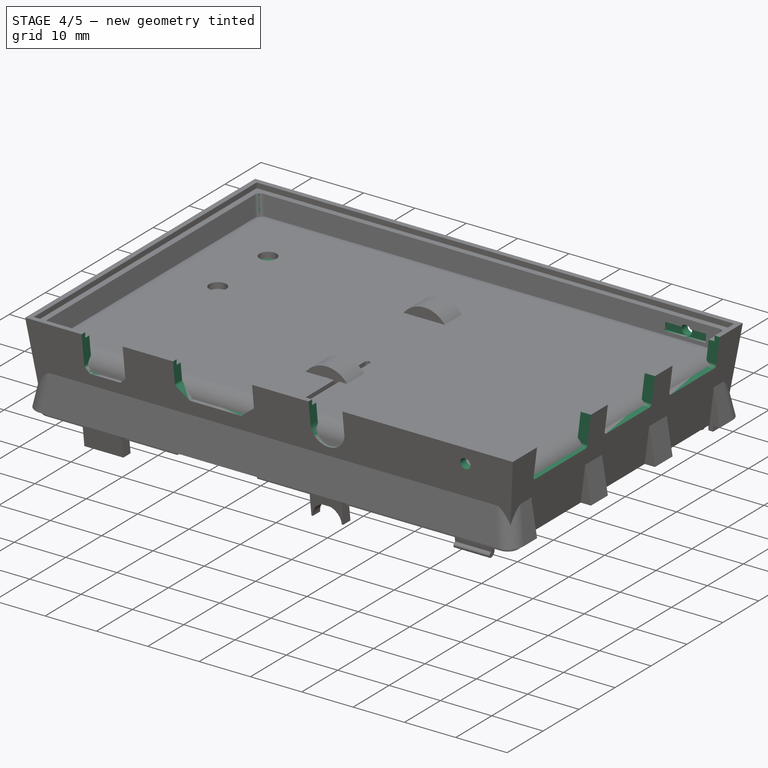
[diagram: stage 4 of 5 — iso view after this stage's code; geometry added in this stage tinted green]
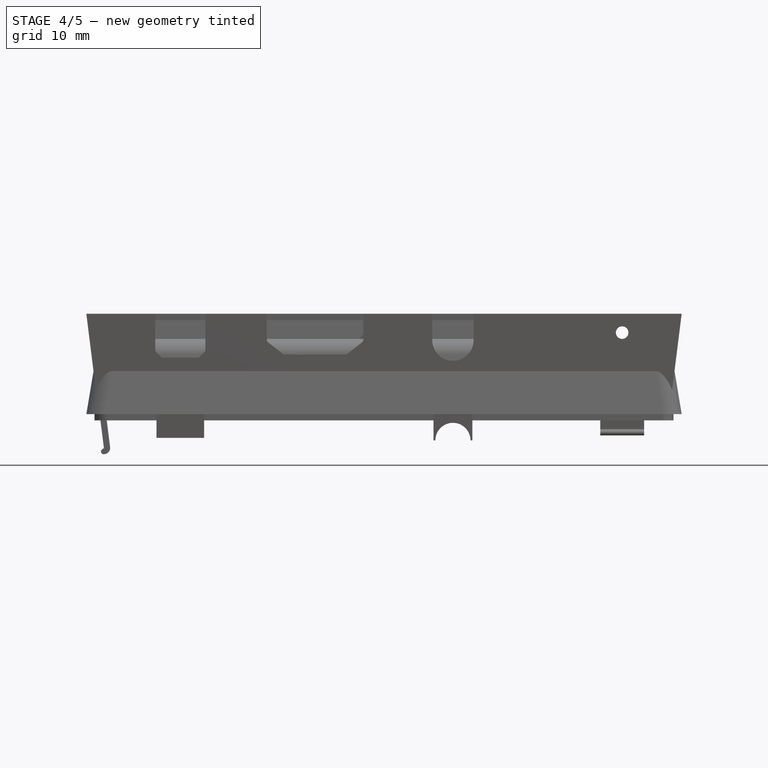
[diagram: stage 4 of 5 — front view after this stage's code; geometry added in this stage tinted green]
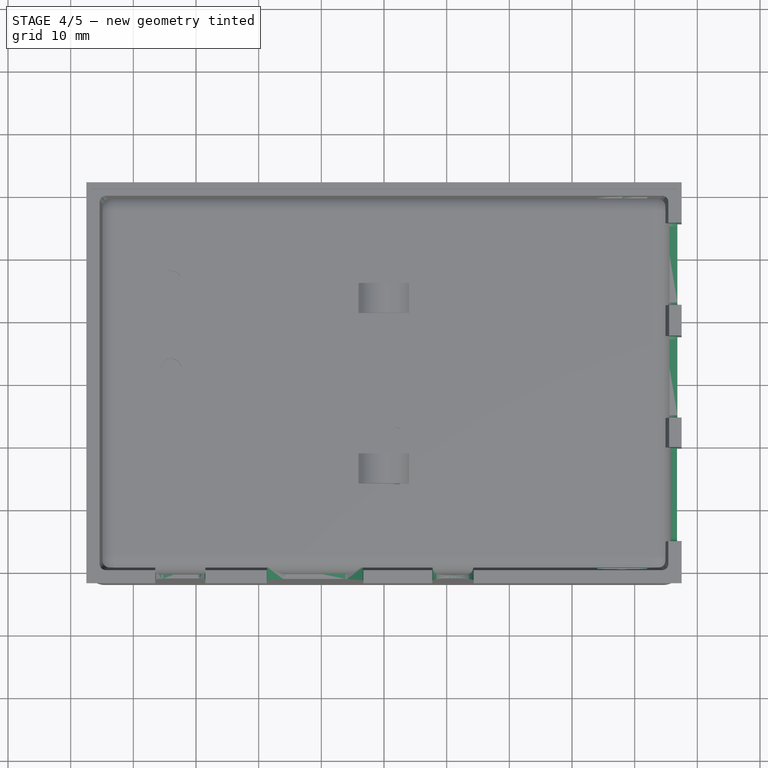
[diagram: stage 4 of 5 — top view after this stage's code; geometry added in this stage tinted green]
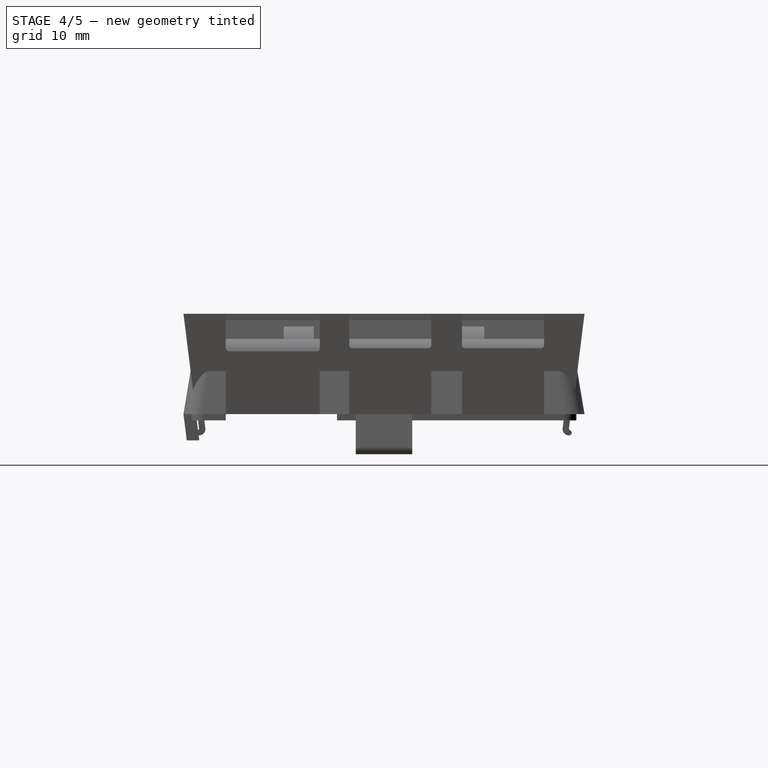
[diagram: stage 4 of 5 — right view after this stage's code; geometry added in this stage tinted green]
FEATURE [Sketcher::SketchObject] Sketch005
  FullyConstrained = true
  MapMode = 5
  Placement = pos=(0,0,0) rot=(0.57735,0.57735,0.57735;2.0944rad)
  Support = -> [YZ_Plane]
  sketch-geometry (27):
    g0: LineSegment StartX=-25.25 StartY=17 StartZ=0 EndX=-10.25 EndY=17 EndZ=0
    g1: LineSegment StartX=-10.25 StartY=17 StartZ=0 EndX=-10.25 EndY=10.5 EndZ=0
    g2: LineSegment StartX=-10.75 StartY=10 StartZ=0 EndX=-24.75 EndY=10 EndZ=0
    g3: LineSegment StartX=-25.25 StartY=10.5 StartZ=0 EndX=-25.25 EndY=17 EndZ=0
    g4: ArcOfCircle CenterX=-10.75 CenterY=10.5 CenterZ=0 NormalX=0 NormalY=0 NormalZ=1 AngleXU=0 Radius=0.5 StartAngle=4.71239 EndAngle=6.28319
    g5: GeomPoint X=-10.25 Y=10 Z=0
    g6: ArcOfCircle CenterX=-24.75 CenterY=10.5 CenterZ=0 NormalX=0 NormalY=0 NormalZ=1 AngleXU=0 Radius=0.5 StartAngle=3.14159 EndAngle=4.71239
    g7: GeomPoint X=-25.25 Y=10 Z=0
    g8: LineSegment StartX=-5.55 StartY=17 StartZ=0 EndX=7.55 EndY=17 EndZ=0
    g9: LineSegment StartX=7.55 StartY=17 StartZ=0 EndX=7.55 EndY=11 EndZ=0
    g10: LineSegment StartX=7.05 StartY=10.5 StartZ=0 EndX=-5.05 EndY=10.5 EndZ=0
    g11: LineSegment StartX=-5.55 StartY=11 StartZ=0 EndX=-5.55 EndY=17 EndZ=0
    g12: LineSegment StartX=12.45 StartY=17 StartZ=0 EndX=25.55 EndY=17 EndZ=0
    g13: LineSegment StartX=25.55 StartY=17 StartZ=0 EndX=25.55 EndY=11 EndZ=0
    g14: LineSegment StartX=25.05 StartY=10.5 StartZ=0 EndX=12.95 EndY=10.5 EndZ=0
    g15: LineSegment StartX=12.45 StartY=11 StartZ=0 EndX=12.45 EndY=17 EndZ=0
    g16: ArcOfCircle CenterX=-5.05 CenterY=11 CenterZ=0 NormalX=0 NormalY=0 NormalZ=1 AngleXU=0 Radius=0.5 StartAngle=3.14159 EndAngle=4.71239
    g17: GeomPoint X=-5.55 Y=10.5 Z=0
    g18: ArcOfCircle CenterX=7.05 CenterY=11 CenterZ=0 NormalX=0 NormalY=0 NormalZ=1 AngleXU=0 Radius=0.5 StartAngle=4.71239 EndAngle=6.28319
    g19: GeomPoint X=7.55 Y=10.5 Z=0
    g20: ArcOfCircle CenterX=12.95 CenterY=11 CenterZ=0 NormalX=0 NormalY=0 NormalZ=1 AngleXU=0 Radius=0.5 StartAngle=3.14159 EndAngle=4.71239
    g21: GeomPoint X=12.45 Y=10.5 Z=0
    g22: ArcOfCircle CenterX=25.05 CenterY=11 CenterZ=0 NormalX=0 NormalY=0 NormalZ=1 AngleXU=0 Radius=0.5 StartAngle=4.71239 EndAngle=6.28319
    g23: GeomPoint X=25.55 Y=10.5 Z=0
    g24: LineSegment StartX=-17.75 StartY=17 StartZ=0 EndX=-17.75 EndY=10 EndZ=0
    g25: LineSegment StartX=1 StartY=17 StartZ=0 EndX=1 EndY=10.5 EndZ=0
    g26: LineSegment StartX=19 StartY=17 StartZ=0 EndX=19 EndY=10.5 EndZ=0
  constraints (69):
    c: Coincident(g0,g1)
    c: Coincident(g3,g0)
    c: Horizontal(g0)
    c: Horizontal(g2)
    c: Vertical(g1)
    c: Vertical(g3)
    c: DistanceY(g7,g3) = 7
    c: PointOnObject(g5,g1)
    c: PointOnObject(g5,g2)
    c: Tangent(g1,g4) = 1.5708
    c: Tangent(g2,g4) = 1.5708
    c: PointOnObject(g7,g2)
    c: PointOnObject(g7,g3)
    c: Tangent(g2,g6) = 1.5708
    c: Tangent(g3,g6) = 1.5708
    c: Equal(g6,g4)
    c: Radius(g4) = 0.5
    c: Coincident(g8,g9)
    c: Coincident(g11,g8)
    c: Horizontal(g8)
    c: Horizontal(g10)
    c: Vertical(g9)
    c: Vertical(g11)
    c: Coincident(g12,g13)
    c: Coincident(g15,g12)
    c: Horizontal(g12)
    c: Horizontal(g14)
    c: Vertical(g13)
    c: Vertical(g15)
    c: PointOnObject(g17,g10)
    c: PointOnObject(g17,g11)
    c: Tangent(g10,g16) = 1.5708
    c: Tangent(g11,g16) = 1.5708
    c: PointOnObject(g19,g9)
    c: PointOnObject(g19,g10)
    c: Tangent(g9,g18) = 1.5708
    c: Tangent(g10,g18) = 1.5708
    c: PointOnObject(g21,g14)
    c: PointOnObject(g21,g15)
    c: Tangent(g14,g20) = 1.5708
    c: Tangent(g15,g20) = 1.5708
    c: PointOnObject(g23,g13)
    c: PointOnObject(g23,g14)
    c: Tangent(g13,g22) = 1.5708
    c: Tangent(g14,g22) = 1.5708
    c: Equal(g4,g16)
    c: Equal(g16,g18)
    c: Equal(g18,g20)
    c: Equal(g20,g22)
    c: Horizontal(g19,g21)
    c: Equal(g8,g12)
    c: Horizontal(g8,g12)
    c: Horizontal(g0,g8)
    c: PointOnObject(g24,g0)
    c: PointOnObject(g24,g2)
    c: Symmetric(g0,g0,g24)
    c: DistanceX(g24,g-1) = 17.75
    c: PointOnObject(g25,g8)
    c: PointOnObject(g25,g10)
    c: PointOnObject(g26,g12)
    c: PointOnObject(g26,g14)
    c: Symmetric(g12,g12,g26)
    c: Symmetric(g8,g8,g25)
    c: DistanceX(g25,g26) = 18
    c: DistanceX(g-1,g25) = 1
    c: DistanceX(g21,g23) = 13.1
    c: DistanceX(g7,g5) = 15
    c: DistanceY(g-1,g23) = 10.5
    c: DistanceY(g-1,g7) = 10
FEATURE [Sketcher::SketchObject] Sketch006
  FullyConstrained = true
  MapMode = 5
  Placement = pos=(0,0,0) rot=(0.57735,0.57735,0.57735;2.0944rad)
  Support = -> [YZ_Plane]
  sketch-geometry (14):
    g0: LineSegment StartX=6 StartY=9 StartZ=0 EndX=1.5 EndY=9 EndZ=0
    g1: LineSegment StartX=-6.5 StartY=8.5 StartZ=0 EndX=-6.5 EndY=5.001 EndZ=0
    g2: LineSegment StartX=-6 StartY=4.501 StartZ=0 EndX=6 EndY=4.501 EndZ=0
    g3: LineSegment StartX=6.5 StartY=5.001 StartZ=0 EndX=6.5 EndY=8.5 EndZ=0
    g4: ArcOfCircle CenterX=6 CenterY=8.5 CenterZ=0 NormalX=0 NormalY=0 NormalZ=1 AngleXU=0 Radius=0.5 StartAngle=0 EndAngle=1.5708
    g5: GeomPoint X=6.5 Y=9 Z=0
    g6: ArcOfCircle CenterX=-6 CenterY=8.5 CenterZ=0 NormalX=0 NormalY=0 NormalZ=1 AngleXU=0 Radius=0.5 StartAngle=1.5708 EndAngle=3.14159
    g7: GeomPoint X=-6.5 Y=9 Z=0
    g8: ArcOfCircle CenterX=-6 CenterY=5.001 CenterZ=0 NormalX=0 NormalY=0 NormalZ=1 AngleXU=0 Radius=0.5 StartAngle=3.14159 EndAngle=4.71239
    g9: GeomPoint X=-6.5 Y=4.501 Z=0
    g10: ArcOfCircle CenterX=6 CenterY=5.001 CenterZ=0 NormalX=0 NormalY=0 NormalZ=1 AngleXU=0 Radius=0.5 StartAngle=4.71239 EndAngle=6.28319
    g11: GeomPoint X=6.5 Y=4.501 Z=0
    g12: ArcOfCircle CenterX=0 CenterY=9 CenterZ=0 NormalX=0 NormalY=0 NormalZ=1 AngleXU=0 Radius=1.5 StartAngle=0 EndAngle=3.14159
    g13: LineSegment StartX=-1.5 StartY=9 StartZ=0 EndX=-6 EndY=9 EndZ=0
  constraints (34):
    c: Horizontal(g0)
    c: Vertical(g1)
    c: Vertical(g3)
    c: DistanceX(g7,g5) = 13
    c: Symmetric(g11,g9,g-2)
    c: DistanceY(g-1,g7) = 9
    c: PointOnObject(g5,g0)
    c: PointOnObject(g5,g3)
    c: Tangent(g0,g4) = -1.5708
    c: Tangent(g3,g4) = -1.5708
    c: PointOnObject(g7,g0)
    c: PointOnObject(g7,g1)
    c: Tangent(g1,g6) = -1.5708
    c: PointOnObject(g9,g1)
    c: PointOnObject(g9,g2)
    c: Tangent(g1,g8) = -1.5708
    c: Tangent(g2,g8) = -1.5708
    c: PointOnObject(g11,g2)
    c: PointOnObject(g11,g3)
    c: Tangent(g2,g10) = -1.5708
    c: Tangent(g3,g10) = -1.5708
    c: Equal(g8,g6)
    c: Equal(g6,g4)
    c: Equal(g4,g10)
    c: Radius(g8) = 0.5
    c: DistanceY(g-1,g11) = 4.501
    c: PointOnObject(g12,g0)
    c: PointOnObject(g12,g-2)
    c: Radius(g12) = 1.5
    c: Coincident(g0,g12)
    c: Coincident(g13,g12)
    c: Horizontal(g12,g0)
    c: Horizontal(g13)
    c: Tangent(g13,g6) = -1.5708
FEATURE [Sketcher::SketchObject] Sketch007
  FullyConstrained = true
  MapMode = 5
  Placement = pos=(0,0,0) rot=(1,0,0;1.5708rad)
  Support = -> [XZ_Plane]
  sketch-geometry (34):
    g0: LineSegment StartX=-18.7 StartY=17 StartZ=0 EndX=-3.3 EndY=17 EndZ=0
    g1: LineSegment StartX=-3.3 StartY=17 StartZ=0 EndX=-3.3 EndY=11.8533 EndZ=0
    g2: LineSegment StartX=-6.17216 StartY=9.5 StartZ=0 EndX=-15.8278 EndY=9.5 EndZ=0
    g3: LineSegment StartX=-18.7 StartY=11.8533 StartZ=0 EndX=-18.7 EndY=17 EndZ=0
    g4: ArcOfCircle CenterX=11 CenterY=11.8 CenterZ=0 NormalX=0 NormalY=0 NormalZ=1 AngleXU=0 Radius=3.3 StartAngle=3.14159 EndAngle=6.28319
    g5: LineSegment StartX=7.7 StartY=11.8 StartZ=0 EndX=7.7 EndY=17 EndZ=0
    g6: LineSegment StartX=14.3 StartY=11.8 StartZ=0 EndX=14.3 EndY=17 EndZ=0
    g7: LineSegment StartX=14.3 StartY=17 StartZ=0 EndX=7.7 EndY=17 EndZ=0
    g8: LineSegment StartX=-36.5 StartY=17 StartZ=0 EndX=-28.5 EndY=17 EndZ=0
    g9: LineSegment StartX=-28.5 StartY=17 StartZ=0 EndX=-28.5 EndY=10.25 EndZ=0
    g10: LineSegment StartX=-29.75 StartY=9 StartZ=0 EndX=-35.25 EndY=9 EndZ=0
    g11: LineSegment StartX=-36.5 StartY=10.25 StartZ=0 EndX=-36.5 EndY=17 EndZ=0
    g12: LineSegment StartX=-32.5 StartY=17 StartZ=0 EndX=-32.5 EndY=9 EndZ=0
    g13: LineSegment StartX=-11 StartY=17 StartZ=0 EndX=-11 EndY=9.5 EndZ=0
    g14: LineSegment StartX=-3.49217 StartY=11.4593 StartZ=0 EndX=-5.86433 EndY=9.60599 EndZ=0
    g15: LineSegment StartX=-18.5078 StartY=11.4593 StartZ=0 EndX=-16.1357 EndY=9.60599 EndZ=0
    g16: ArcOfCircle CenterX=-18.2 CenterY=11.8533 CenterZ=0 NormalX=0 NormalY=0 NormalZ=1 AngleXU=0 Radius=0.5 StartAngle=3.14159 EndAngle=4.04916
    g17: GeomPoint X=-18.7 Y=11.6095 Z=0
    g18: ArcOfCircle CenterX=-15.8278 CenterY=10 CenterZ=0 NormalX=0 NormalY=0 NormalZ=1 AngleXU=0 Radius=0.5 StartAngle=4.04916 EndAngle=4.71239
    g19: GeomPoint X=-16 Y=9.5 Z=0
    g20: ArcOfCircle CenterX=-6.17216 CenterY=10 CenterZ=0 NormalX=0 NormalY=0 NormalZ=1 AngleXU=0 Radius=0.5 StartAngle=4.71239 EndAngle=5.37561
    g21: GeomPoint X=-6 Y=9.5 Z=0
    g22: ArcOfCircle CenterX=-3.8 CenterY=11.8533 CenterZ=0 NormalX=0 NormalY=0 NormalZ=1 AngleXU=0 Radius=0.5 StartAngle=5.37561 EndAngle=6.28319
    g23: GeomPoint X=-3.3 Y=11.6095 Z=0
    g24: LineSegment StartX=-36.3536 StartY=9.89645 StartZ=0 EndX=-35.6036 EndY=9.14645 EndZ=0
    g25: LineSegment StartX=-29.3964 StartY=9.14645 StartZ=0 EndX=-28.6464 EndY=9.89645 EndZ=0
    g26: ArcOfCircle CenterX=-36 CenterY=10.25 CenterZ=0 NormalX=0 NormalY=0 NormalZ=1 AngleXU=0 Radius=0.5 StartAngle=3.14159 EndAngle=3.92699
    g27: GeomPoint X=-36.5 Y=10.0429 Z=0
    g28: ArcOfCircle CenterX=-35.25 CenterY=9.5 CenterZ=0 NormalX=0 NormalY=0 NormalZ=1 AngleXU=0 Radius=0.5 StartAngle=3.92699 EndAngle=4.71239
    g29: GeomPoint X=-35.4571 Y=9 Z=0
    g30: ArcOfCircle CenterX=-29.75 CenterY=9.5 CenterZ=0 NormalX=0 NormalY=0 NormalZ=1 AngleXU=0 Radius=0.5 StartAngle=4.71239 EndAngle=5.49779
    g31: GeomPoint X=-29.5429 Y=9 Z=0
    g32: ArcOfCircle CenterX=-29 CenterY=10.25 CenterZ=0 NormalX=0 NormalY=0 NormalZ=1 AngleXU=0 Radius=0.5 StartAngle=5.49779 EndAngle=6.28319
    g33: GeomPoint X=-28.5 Y=10.0429 Z=0
  constraints (85):
    c: Coincident(g0,g1)
    c: Coincident(g3,g0)
    c: Horizontal(g0)
    c: Horizontal(g2)
    c: Vertical(g1)
    c: Vertical(g3)
    c: Vertical(g5)
    c: Vertical(g6)
    c: Coincident(g7,g6)
    c: Coincident(g7,g5)
    c: Horizontal(g7)
    c: Coincident(g8,g9)
    c: Coincident(g11,g8)
    c: Horizontal(g8)
    c: Horizontal(g10)
    c: Vertical(g9)
    c: Vertical(g11)
    c: PointOnObject(g12,g8)
    c: PointOnObject(g12,g10)
    c: PointOnObject(g13,g0)
    c: PointOnObject(g13,g2)
    c: Symmetric(g0,g0,g13)
    c: Symmetric(g8,g8,g12)
    c: DistanceX(g0,g0) = 15.4
    c: DistanceX(g13,g-1) = 11
    c: DistanceX(g8,g8) = 8
    c: DistanceX(g12,g-1) = 32.5
    c: Horizontal(g8,g0)
    c: Horizontal(g0,g5)
    c: Tangent(g6,g4) = -1.5708
    c: Tangent(g5,g4) = 1.5708
    c: DistanceY(g-1,g4) = 11.8
    c: DistanceX(g-1,g4) = 11
    c: DistanceX(g7,g7) = 6.6
    c: DistanceY(g-1,g6) = 17
    c: Horizontal(g23,g17)
    c: DistanceY(g-1,g19) = 9.5
    c: DistanceX(g19,g21) = 10
    c: PointOnObject(g17,g3)
    c: PointOnObject(g17,g15)
    c: Tangent(g3,g16) = 1.5708
    c: Tangent(g15,g16) = -1.5708
    c: PointOnObject(g19,g2)
    c: PointOnObject(g19,g15)
    c: Tangent(g2,g18) = 1.5708
    c: Tangent(g15,g18) = -1.5708
    c: PointOnObject(g21,g2)
    c: PointOnObject(g21,g14)
    c: Tangent(g2,g20) = 1.5708
    c: Tangent(g14,g20) = 1.5708
    c: PointOnObject(g23,g1)
    c: PointOnObject(g23,g14)
    c: Tangent(g1,g22) = 1.5708
    c: Tangent(g14,g22) = 1.5708
    c: Equal(g16,g18)
    c: Equal(g18,g20)
    c: Equal(g20,g22)
    c: Radius(g22) = 0.5
    c: Equal(g15,g14)
    c: Angle(g2,g15) = 2.47837
    c: DistanceY(g-1,g29) = 9
    c: Horizontal(g27,g33)
    c: PointOnObject(g27,g11)
    c: PointOnObject(g27,g24)
    c: Tangent(g11,g26) = 1.5708
    c: Tangent(g24,g26) = -1.5708
    c: PointOnObject(g29,g10)
    c: PointOnObject(g29,g24)
    c: Tangent(g10,g28) = 1.5708
    c: Tangent(g24,g28) = -1.5708
    c: PointOnObject(g31,g10)
    c: PointOnObject(g31,g25)
    c: Tangent(g10,g30) = 1.5708
    c: Tangent(g25,g30) = -1.5708
    c: PointOnObject(g33,g9)
    c: PointOnObject(g33,g25)
    c: Tangent(g9,g32) = 1.5708
    c: Tangent(g25,g32) = -1.5708
    c: Equal(g26,g28)
    c: Equal(g28,g30)
    c: Equal(g30,g32)
    c: Equal(g32,g16)
    c: Equal(g25,g24)
    c: Angle(g25,g10) = 2.35619
    c: DistanceX(g10,g10) = 5.5
FEATURE [Sketcher::SketchObject] Sketch008
  AttachmentOffset = pos=(0,0,4.5) rot=(0,0,1;0rad)
  FullyConstrained = true
  MapMode = 5
  Placement = pos=(0,0,4.5) rot=(0,0,1;0rad)
  Support = -> [XY_Plane]
  sketch-geometry (4):
    g0: Circle CenterX=-39 CenterY=-24.5 CenterZ=0 NormalX=0 NormalY=0 NormalZ=1 AngleXU=0 Radius=3
    g1: Circle CenterX=19 CenterY=-24.5 CenterZ=0 NormalX=0 NormalY=0 NormalZ=1 AngleXU=0 Radius=3
    g2: Circle CenterX=-39 CenterY=24.5 CenterZ=0 NormalX=0 NormalY=0 NormalZ=1 AngleXU=0 Radius=3
    g3: Circle CenterX=19 CenterY=24.5 CenterZ=0 NormalX=0 NormalY=0 NormalZ=1 AngleXU=0 Radius=3
  constraints (12):
    c: DistanceX(g0,g-1) = 39
    c: DistanceX(g-1,g1) = 19
    c: Horizontal(g0,g1)
    c: DistanceY(g1,g-1) = 24.5
    c: Equal(g0,g1)
    c: Diameter(g0) = 6
    c: Vertical(g1,g3)
    c: Vertical(g0,g2)
    c: Horizontal(g3,g2)
    c: DistanceY(g0,g2) = 49
    c: Equal(g1,g3)
    c: Equal(g2,g3)
FEATURE [Sketcher::SketchObject] Sketch009
  FullyConstrained = true
  MapMode = 5
  Placement = pos=(0,0,0) rot=(1,0,0;1.5708rad)
  Support = -> [XZ_Plane]
  sketch-geometry (4):
    g0: LineSegment StartX=-42.8 StartY=8 StartZ=0 EndX=-45.3 EndY=8 EndZ=0
    g1: LineSegment StartX=-45.3 StartY=8 StartZ=0 EndX=-45.3 EndY=10.5 EndZ=0
    g2: LineSegment StartX=-45.3 StartY=10.5 StartZ=0 EndX=-42.8 EndY=10.5 EndZ=0
    g3: LineSegment StartX=-42.8 StartY=10.5 StartZ=0 EndX=-42.8 EndY=8 EndZ=0
  constraints (12):
    c: Coincident(g0,g1)
    c: Coincident(g1,g2)
    c: Coincident(g2,g3)
    c: Coincident(g3,g0)
    c: Horizontal(g0)
    c: Horizontal(g2)
    c: Vertical(g1)
    c: Vertical(g3)
    c: DistanceX(g0,g-1) = 45.3
    c: DistanceY(g-1,g0) = 8
    c: DistanceY(g3,g3) = 2.5
    c: DistanceX(g2,g2) = 2.5
FEATURE [Sketcher::SketchObject] Sketch010
  AttachmentOffset = pos=(0,0,8) rot=(0,0,1;0rad)
  FullyConstrained = true
  MapMode = 5
  Placement = pos=(0,0,8) rot=(0,0,1;0rad)
  Support = -> [XY_Plane]
  sketch-geometry (4):
    g0: Circle CenterX=-39 CenterY=-24.5 CenterZ=0 NormalX=0 NormalY=0 NormalZ=1 AngleXU=0 Radius=3
    g1: Circle CenterX=19 CenterY=-24.5 CenterZ=0 NormalX=0 NormalY=0 NormalZ=1 AngleXU=0 Radius=3
    g2: Circle CenterX=-39 CenterY=24.5 CenterZ=0 NormalX=0 NormalY=0 NormalZ=1 AngleXU=0 Radius=3
    g3: Circle CenterX=19 CenterY=24.5 CenterZ=0 NormalX=0 NormalY=0 NormalZ=1 AngleXU=0 Radius=3
  constraints (12):
    c: DistanceX(g0,g-1) = 39
    c: DistanceX(g-1,g1) = 19
    c: Horizontal(g0,g1)
    c: DistanceY(g1,g-1) = 24.5
    c: Equal(g0,g1)
    c: Diameter(g0) = 6
    c: Vertical(g1,g3)
    c: Vertical(g0,g2)
    c: Horizontal(g3,g2)
    c: DistanceY(g0,g2) = 49
    c: Equal(g1,g3)
    c: Equal(g2,g3)
FEATURE [Sketcher::SketchObject] Sketch011
  AttachmentOffset = pos=(0,0,38) rot=(0,0,1;0rad)
  FullyConstrained = true
  MapMode = 5
  Placement = pos=(38,-8.4e-15,8.4e-15) rot=(0.57735,0.57735,0.57735;2.0944rad)
  Support = -> [YZ_Plane]
  sketch-geometry (5):
    g0: LineSegment StartX=30 StartY=12 StartZ=0 EndX=30 EndY=13.5 EndZ=0
    g1: LineSegment StartX=30 StartY=13.5 StartZ=0 EndX=-30 EndY=13.5 EndZ=0
    g2: LineSegment StartX=-30 StartY=13.5 StartZ=0 EndX=-30 EndY=12 EndZ=0
    g3: LineSegment StartX=-30 StartY=12 StartZ=0 EndX=30 EndY=12 EndZ=0
    g4: GeomPoint X=0 Y=12.75 Z=0
  constraints (13):
    c: Coincident(g0,g1)
    c: Coincident(g1,g2)
    c: Coincident(g2,g3)
    c: Coincident(g3,g0)
    c: Horizontal(g1)
    c: Horizontal(g3)
    c: Vertical(g0)
    c: Vertical(g2)
    c: Symmetric(g1,g0,g4)
    c: PointOnObject(g4,g-2)
    c: DistanceY(g2,g2) = 1.5
    c: DistanceY(g-1,g2) = 12
    c: DistanceX(g3,g3) = 60
FEATURE [Sketcher::SketchObject] Sketch012
  FullyConstrained = true
  MapMode = 5
  Placement = pos=(0,0,0) rot=(1,0,0;1.5708rad)
  Support = -> [XZ_Plane]
  sketch-geometry (1):
    g0: Circle CenterX=38 CenterY=13 CenterZ=0 NormalX=0 NormalY=0 NormalZ=1 AngleXU=0 Radius=1
  constraints (3):
    c: DistanceX(g-1,g0) = 38
    c: DistanceY(g-1,g0) = 13
    c: Diameter(g0) = 2
FEATURE [Sketcher::SketchObject] Sketch013
  AttachmentOffset = pos=(0,0,1.2) rot=(0,0,1;0rad)
  FullyConstrained = true
  MapMode = 5
  Placement = pos=(0,0,1.2) rot=(0,0,1;0rad)
  Support = -> [XY_Plane]
  sketch-geometry (10):
    g0: ArcOfCircle CenterX=-4 CenterY=20 CenterZ=0 NormalX=0 NormalY=0 NormalZ=1 AngleXU=0 Radius=4 StartAngle=1.5708 EndAngle=4.71239
    g1: ArcOfCircle CenterX=4 CenterY=20 CenterZ=0 NormalX=0 NormalY=0 NormalZ=1 AngleXU=0 Radius=4 StartAngle=4.71239 EndAngle=7.85398
    g2: LineSegment StartX=-4 StartY=16 StartZ=0 EndX=4 EndY=16 EndZ=0
    g3: LineSegment StartX=4 StartY=24 StartZ=0 EndX=-4 EndY=24 EndZ=0
    g4: ArcOfCircle CenterX=-4 CenterY=-20 CenterZ=0 NormalX=0 NormalY=0 NormalZ=1 AngleXU=0 Radius=4 StartAngle=1.5708 EndAngle=4.71239
    g5: ArcOfCircle CenterX=4 CenterY=-20 CenterZ=0 NormalX=0 NormalY=0 NormalZ=1 AngleXU=0 Radius=4 StartAngle=4.71239 EndAngle=7.85398
    g6: LineSegment StartX=-4 StartY=-24 StartZ=0 EndX=4 EndY=-24 EndZ=0
    g7: LineSegment StartX=4 StartY=-16 StartZ=0 EndX=-4 EndY=-16 EndZ=0
    g8: GeomPoint X=0 Y=-20 Z=0
    g9: GeomPoint X=0 Y=20 Z=0
  constraints (21):
    c: Tangent(g0,g2) = -1.5708
    c: Tangent(g2,g1) = -1.5708
    c: Tangent(g1,g3) = -1.5708
    c: Tangent(g3,g0) = -1.5708
    c: Equal(g0,g1)
    c: Tangent(g4,g6) = -1.5708
    c: Tangent(g6,g5) = -1.5708
    c: Tangent(g5,g7) = -1.5708
    c: Tangent(g7,g4) = -1.5708
    c: Equal(g4,g5)
    c: Symmetric(g0,g1,g9)
    c: Symmetric(g4,g5,g8)
    c: PointOnObject(g8,g-2)
    c: Equal(g1,g5)
    c: Horizontal(g2)
    c: Horizontal(g7)
    c: Symmetric(g9,g8,g-1)
    c: Radius(g1) = 4
    c: Equal(g7,g2)
    c: DistanceX(g3,g3) = 8
    c: DistanceY(g4,g0) = 40
FEATURE [Sketcher::SketchObject] Sketch014
  FullyConstrained = true
  MapMode = 5
  Support = -> [XY_Plane]
  sketch-geometry (24):
    g0: ArcOfCircle CenterX=-4 CenterY=20 CenterZ=0 NormalX=0 NormalY=0 NormalZ=1 AngleXU=0 Radius=4 StartAngle=1.5708 EndAngle=4.71239
    g1: ArcOfCircle CenterX=4 CenterY=20 CenterZ=0 NormalX=0 NormalY=0 NormalZ=1 AngleXU=0 Radius=4 StartAngle=4.71239 EndAngle=7.85398
    g2: LineSegment StartX=-4 StartY=16 StartZ=0 EndX=4 EndY=16 EndZ=0
    g3: LineSegment StartX=4 StartY=24 StartZ=0 EndX=-4 EndY=24 EndZ=0
    g4: ArcOfCircle CenterX=-4 CenterY=-20 CenterZ=0 NormalX=0 NormalY=0 NormalZ=1 AngleXU=0 Radius=4 StartAngle=1.5708 EndAngle=4.71239
    g5: ArcOfCircle CenterX=4 CenterY=-20 CenterZ=0 NormalX=0 NormalY=0 NormalZ=1 AngleXU=0 Radius=4 StartAngle=4.71239 EndAngle=7.85398
    g6: LineSegment StartX=-4 StartY=-24 StartZ=0 EndX=4 EndY=-24 EndZ=0
    g7: LineSegment StartX=4 StartY=-16 StartZ=0 EndX=-4 EndY=-16 EndZ=0
    g8: GeomPoint X=0 Y=-20 Z=0
    g9: GeomPoint X=0 Y=20 Z=0
    g10: LineSegment StartX=4 StartY=24 StartZ=0 EndX=0 EndY=24 EndZ=0
    g11: LineSegment StartX=0 StartY=24 StartZ=0 EndX=0 EndY=21.8 EndZ=0
    g12: LineSegment StartX=0 StartY=21.8 StartZ=0 EndX=-4 EndY=21.8 EndZ=0
    g13: ArcOfCircle CenterX=-4 CenterY=20 CenterZ=0 NormalX=0 NormalY=0 NormalZ=1 AngleXU=0 Radius=1.8 StartAngle=1.5708 EndAngle=4.71239
    g14: LineSegment StartX=-4 StartY=18.2 StartZ=0 EndX=0 EndY=18.2 EndZ=0
    g15: LineSegment StartX=0 StartY=18.2 StartZ=0 EndX=0 EndY=16 EndZ=0
    g16: LineSegment StartX=0 StartY=16 StartZ=0 EndX=4 EndY=16 EndZ=0
    g17: ArcOfCircle CenterX=-4 CenterY=-20 CenterZ=0 NormalX=0 NormalY=0 NormalZ=1 AngleXU=0 Radius=1.8 StartAngle=1.5708 EndAngle=4.71239
    g18: LineSegment StartX=-4 StartY=-18.2 StartZ=0 EndX=0 EndY=-18.2 EndZ=0
    g19: LineSegment StartX=-4 StartY=-21.8 StartZ=0 EndX=0 EndY=-21.8 EndZ=0
    g20: LineSegment StartX=0 StartY=-18.2 StartZ=0 EndX=0 EndY=-16 EndZ=0
    g21: LineSegment StartX=0 StartY=-21.8 StartZ=0 EndX=0 EndY=-24 EndZ=0
    g22: LineSegment StartX=0 StartY=-24 StartZ=0 EndX=4 EndY=-24 EndZ=0
    g23: LineSegment StartX=0 StartY=-16 StartZ=0 EndX=4 EndY=-16 EndZ=0
  constraints (56):
    c: Tangent(g0,g2) = -1.5708
    c: Tangent(g2,g1) = -1.5708
    c: Tangent(g1,g3) = -1.5708
    c: Tangent(g3,g0) = -1.5708
    c: Equal(g0,g1)
    c: Tangent(g4,g6) = -1.5708
    c: Tangent(g6,g5) = -1.5708
    c: Tangent(g5,g7) = -1.5708
    c: Tangent(g7,g4) = -1.5708
    c: Equal(g4,g5)
    c: Symmetric(g0,g1,g9)
    c: Symmetric(g4,g5,g8)
    c: PointOnObject(g8,g-2)
    c: Equal(g1,g5)
    c: Horizontal(g2)
    c: Horizontal(g7)
    c: Symmetric(g9,g8,g-1)
    c: Radius(g1) = 4
    c: Equal(g7,g2)
    c: DistanceX(g3,g3) = 8
    c: DistanceY(g4,g0) = 40
    c: Tangent(g1,g10) = -1.5708
    c: Coincident(g10,g11)
    c: PointOnObject(g11,g-2)
    c: Vertical(g11)
    c: Coincident(g11,g12)
    c: Horizontal(g12)
    c: Tangent(g12,g13) = -1.5708
    c: Tangent(g13,g14) = -1.5708
    c: Coincident(g14,g15)
    c: PointOnObject(g15,g2)
    c: Vertical(g15)
    c: Coincident(g15,g16)
    c: Coincident(g16,g1)
    c: Horizontal(g14)
    c: Coincident(g13,g0)
    c: PointOnObject(g14,g-2)
    c: DistanceY(g14,g11) = 3.6
    c: Coincident(g17,g4)
    c: PointOnObject(g18,g-2)
    c: Horizontal(g18)
    c: PointOnObject(g19,g-2)
    c: Horizontal(g19)
    c: Tangent(g18,g17) = 1.5708
    c: Tangent(g19,g17) = -1.5708
    c: Coincident(g20,g18)
    c: PointOnObject(g20,g7)
    c: Vertical(g20)
    c: Coincident(g21,g19)
    c: PointOnObject(g21,g6)
    c: Vertical(g21)
    c: Coincident(g22,g21)
    c: Coincident(g22,g5)
    c: Coincident(g23,g20)
    c: Coincident(g23,g5)
    c: Equal(g13,g17)
FEATURE [PartDesign::Fillet] Fillet
  Base = -> Pocket [Edge44,Edge46,Edge45,Edge23,Edge24,Edge25,Edge47,Edge48]
  BaseFeature = -> Pocket
  Radius = 1
  SupportTransform = false
  UseAllEdges = false
FEATURE [PartDesign::Pocket] Pocket001
  BaseFeature = -> Fillet
  Direction = (-1,3e-16,-3e-16)
  Length = 5
  Length2 = 5
  Profile = -> Sketch005
  ReferenceAxis = -> Sketch005 [N_Axis]
  Reversed = true
  Type = 1
FEATURE [PartDesign::Pocket] Pocket002
  BaseFeature = -> Pocket001
  Direction = (-1,3e-16,-3e-16)
  Length = 5
  Length2 = 5
  Profile = -> Sketch006
  ReferenceAxis = -> Sketch006 [N_Axis]
  Type = 1
FEATURE [PartDesign::Pocket] Pocket003
  BaseFeature = -> Pocket002
  Direction = (0,1,-2e-16)
  Length = 5
  Length2 = 5
  Profile = -> Sketch007
  ReferenceAxis = -> Sketch007 [N_Axis]
  Reversed = true
  Type = 1
FEATURE [PartDesign::Pad] Pad
  BaseFeature = -> Pocket003
  Direction = (0,0,1)
  Length = 3.5
  Length2 = 10
  Profile = -> Sketch008
  ReferenceAxis = -> Sketch008 [N_Axis]
  Type = 0
FEATURE [PartDesign::Hole] Hole
  BaseFeature = -> Pad
  CustomThreadClearance = 0
  Depth = 6
  DepthType = 0
  Diameter = 2.8
  DrillForDepth = false
  DrillPoint = 1
  DrillPointAngle = 118
  HoleCutCountersinkAngle = 90
  HoleCutCustomValues = false
  HoleCutDepth = 0
  HoleCutDiameter = 6.1
  HoleCutType = 0
  ModelThread = false
  Profile = -> Sketch010
  Tapered = false
  TaperedAngle = 90
  ThreadClass = 0
  ThreadDepth = 6
  ThreadDepthType = 0
  ThreadDirection = 0
  ThreadFit = 0
  ThreadSize = 0
  ThreadType = 0
  Threaded = false
  UseCustomThreadClearance = false
FEATURE [PartDesign::Pocket] Pocket004
  BaseFeature = -> Hole
  Direction = (0,1,2e-16)
  Length = 10
  Length2 = 5
  Midplane = true
  Profile = -> Sketch009
  ReferenceAxis = -> Sketch009 [N_Axis]
  Type = 0
FEATURE [PartDesign::Pocket] Pocket005
  BaseFeature = -> Pocket004
  Direction = (-1,3e-16,-3e-16)
  Length = 8
  Length2 = 5
  Midplane = true
  Profile = -> Sketch011
  ReferenceAxis = -> Sketch011 [N_Axis]
  Type = 0
FEATURE [PartDesign::Pocket] Pocket006
  BaseFeature = -> Pocket005
  Direction = (0,1,2e-16)
  Length = 5
  Length2 = 5
  Midplane = true
  Profile = -> Sketch012
  ReferenceAxis = -> Sketch012 [N_Axis]
  Type = 1
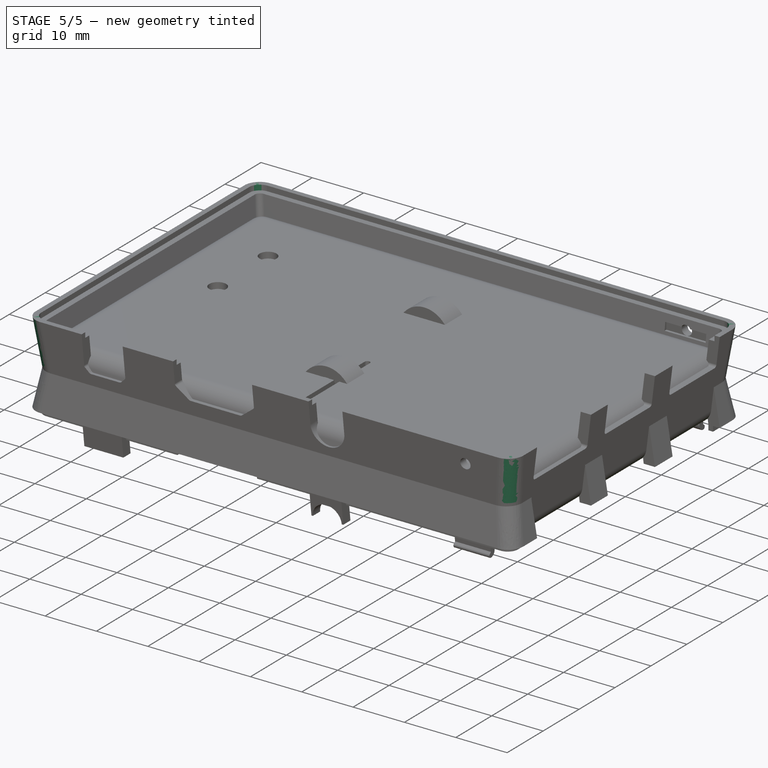
[diagram: stage 5 of 5 — iso view after this stage's code; geometry added in this stage tinted green]
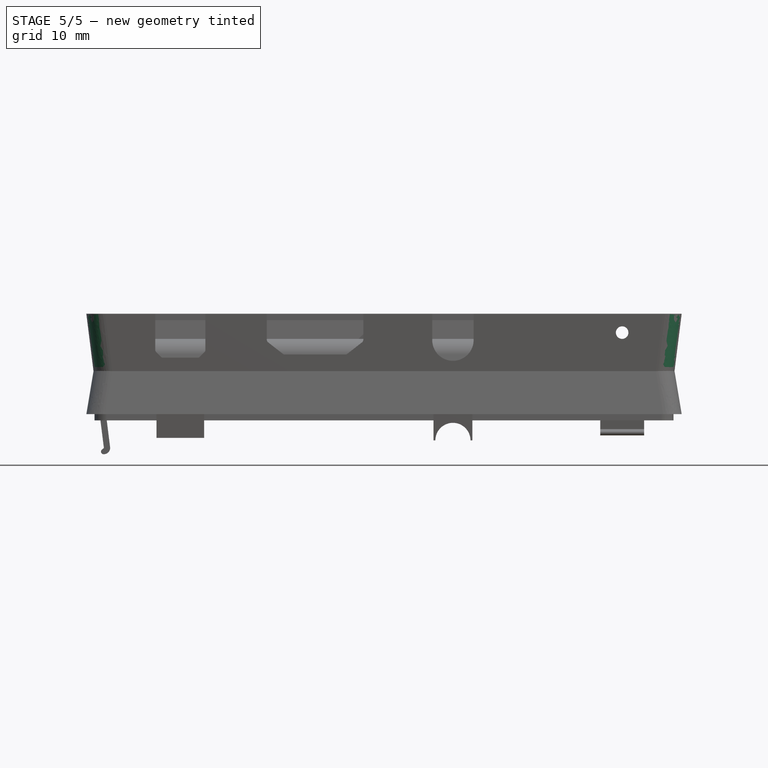
[diagram: stage 5 of 5 — front view after this stage's code; geometry added in this stage tinted green]
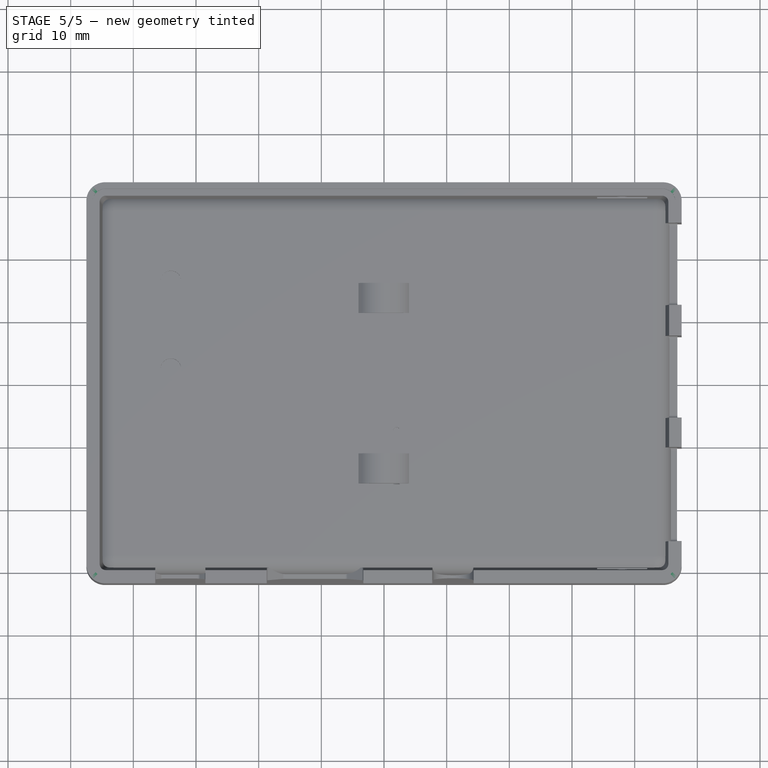
[diagram: stage 5 of 5 — top view after this stage's code; geometry added in this stage tinted green]
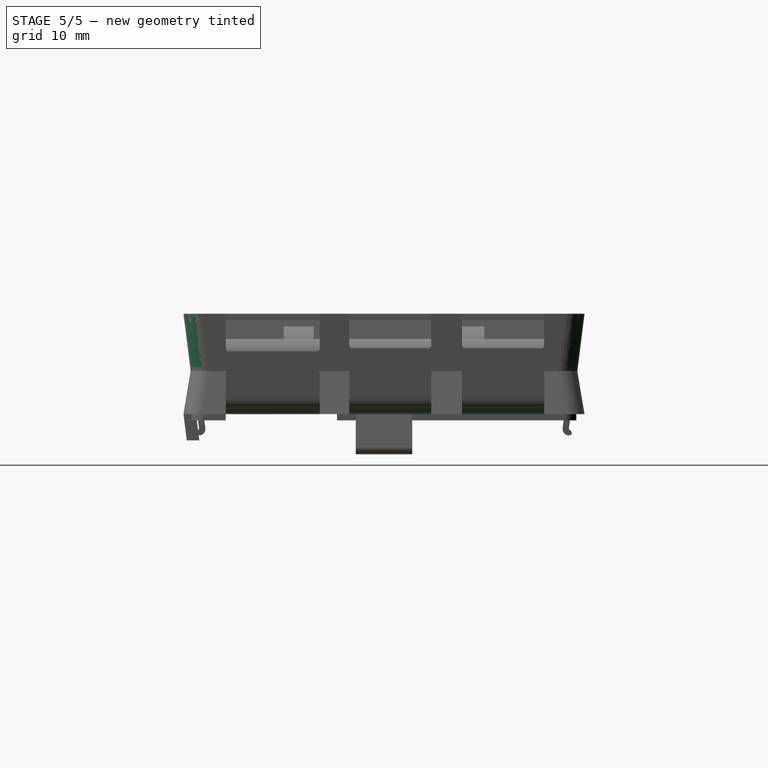
[diagram: stage 5 of 5 — right view after this stage's code; geometry added in this stage tinted green]
FEATURE [PartDesign::Pocket] Pocket007
  BaseFeature = -> Pocket006
  Direction = (0,0,-1)
  Length = 2.5
  Length2 = 5
  Profile = -> Sketch013
  ReferenceAxis = -> Sketch013 [N_Axis]
  Reversed = true
  Type = 0
FEATURE [PartDesign::Pocket] Pocket008
  BaseFeature = -> Pocket007
  Direction = (0,0,-1)
  Length = 1.5
  Length2 = 5
  Profile = -> Sketch014
  ReferenceAxis = -> Sketch014 [N_Axis]
  Reversed = true
  Type = 0
FEATURE [PartDesign::Fillet] Fillet001
  Base = -> Pocket008 [Edge154,Edge155,Edge157,Edge176]
  BaseFeature = -> Pocket008
  Radius = 2.1
  SupportTransform = false
  UseAllEdges = false
FEATURE [PartDesign::Fillet] Fillet002
  Base = -> Fillet001 [Edge133,Edge320,Edge318,Edge131,Edge319,Edge129,Edge279,Edge278]
  BaseFeature = -> Fillet001
  Radius = 3
  SupportTransform = false
  UseAllEdges = false
FEATURE [PartDesign::Chamfer] Chamfer
  Angle = 45
  Base = -> Fillet002 [Edge416,Edge414,Edge415,Edge417]
  BaseFeature = -> Fillet002
  ChamferType = 0
  FlipDirection = false
  Size = 1
  Size2 = 1
  SupportTransform = false
  UseAllEdges = false
FEATURE [PartDesign::Chamfer] Chamfer001
  Angle = 45
  Base = -> Chamfer [Edge243,Edge241,Edge101,Edge204]
  BaseFeature = -> Chamfer
  ChamferType = 0
  FlipDirection = false
  Size = 0.6
  Size2 = 1
  SupportTransform = false
  UseAllEdges = false
FEATURE [Sketcher::SketchObject] Sketch028
  AttachmentOffset = pos=(0,0,1.2) rot=(0,0,1;0rad)
  FullyConstrained = true
  MapMode = 5
  Placement = pos=(0,0,1.2) rot=(0,0,1;0rad)
  Support = -> [XY_Plane]
  sketch-geometry (10):
    g0: ArcOfCircle CenterX=20 CenterY=8 CenterZ=0 NormalX=0 NormalY=0 NormalZ=1 AngleXU=0 Radius=4 StartAngle=1e-16 EndAngle=3.14159
    g1: ArcOfCircle CenterX=20 CenterY=-8 CenterZ=0 NormalX=0 NormalY=0 NormalZ=1 AngleXU=0 Radius=4 StartAngle=3.14159 EndAngle=6.28319
    g2: LineSegment StartX=16 StartY=8 StartZ=0 EndX=16 EndY=-8 EndZ=0
    g3: LineSegment StartX=24 StartY=-8 StartZ=0 EndX=24 EndY=8 EndZ=0
    g4: ArcOfCircle CenterX=-20 CenterY=8 CenterZ=0 NormalX=0 NormalY=0 NormalZ=1 AngleXU=0 Radius=4 StartAngle=0 EndAngle=3.14159
    g5: ArcOfCircle CenterX=-20 CenterY=-8 CenterZ=0 NormalX=0 NormalY=0 NormalZ=1 AngleXU=0 Radius=4 StartAngle=3.14159 EndAngle=6.28319
    g6: LineSegment StartX=-24 StartY=8 StartZ=0 EndX=-24 EndY=-8 EndZ=0
    g7: LineSegment StartX=-16 StartY=-8 StartZ=0 EndX=-16 EndY=8 EndZ=0
    g8: GeomPoint X=-20 Y=0 Z=0
    g9: GeomPoint X=20 Y=0 Z=0
  constraints (21):
    c: Tangent(g0,g2) = -1.5708
    c: Tangent(g2,g1) = -1.5708
    c: Tangent(g1,g3) = -1.5708
    c: Tangent(g3,g0) = -1.5708
    c: Equal(g0,g1)
    c: Vertical(g2)
    c: Tangent(g4,g6) = -1.5708
    c: Tangent(g6,g5) = -1.5708
    c: Tangent(g5,g7) = -1.5708
    c: Tangent(g7,g4) = -1.5708
    c: Equal(g4,g5)
    c: Symmetric(g1,g0,g9)
    c: Symmetric(g5,g4,g8)
    c: PointOnObject(g8,g-1)
    c: Vertical(g7)
    c: Equal(g7,g2)
    c: DistanceY(g3,g3) = 16
    c: Radius(g1) = 4
    c: Equal(g1,g5)
    c: Symmetric(g8,g9,g-2)
    c: DistanceX(g4,g0) = 40
FEATURE [PartDesign::Pocket] Pocket013
  BaseFeature = -> Chamfer001
  Direction = (0,0,-1)
  Length = 2.5
  Length2 = 5
  Profile = -> Sketch028
  ReferenceAxis = -> Sketch028 [N_Axis]
  Refine = true
  Reversed = true
  Type = 0
FEATURE [Sketcher::SketchObject] Sketch029
  FullyConstrained = true
  MapMode = 5
  Support = -> [XY_Plane]
  sketch-geometry (28):
    g0: LineSegment StartX=-24 StartY=4 StartZ=0 EndX=-21.8 EndY=4 EndZ=0
    g1: LineSegment StartX=-16 StartY=4 StartZ=0 EndX=-16 EndY=-4 EndZ=0
    g2: LineSegment StartX=-16 StartY=-4 StartZ=0 EndX=-18.2 EndY=-4 EndZ=0
    g3: LineSegment StartX=-24 StartY=-4 StartZ=0 EndX=-24 EndY=4 EndZ=0
    g4: LineSegment StartX=16 StartY=4 StartZ=0 EndX=18.2 EndY=4 EndZ=0
    g5: LineSegment StartX=24 StartY=4 StartZ=0 EndX=24 EndY=-4 EndZ=0
    g6: LineSegment StartX=24 StartY=-4 StartZ=0 EndX=21.8 EndY=-4 EndZ=0
    g7: LineSegment StartX=16 StartY=-4 StartZ=0 EndX=16 EndY=4 EndZ=0
    g8: GeomPoint X=-20 Y=0 Z=0
    g9: GeomPoint X=20 Y=0 Z=0
    g10: ArcOfCircle CenterX=-20 CenterY=8 CenterZ=0 NormalX=0 NormalY=0 NormalZ=1 AngleXU=0 Radius=1.8 StartAngle=1.1946e-12 EndAngle=3.14159
    g11: ArcOfCircle CenterX=-20 CenterY=-8 CenterZ=0 NormalX=0 NormalY=0 NormalZ=1 AngleXU=0 Radius=1.8 StartAngle=3.14159 EndAngle=6.28319
    g12: LineSegment StartX=-21.8 StartY=8 StartZ=0 EndX=-21.8 EndY=4 EndZ=0
    g13: LineSegment StartX=-18.2 StartY=-8 StartZ=0 EndX=-18.2 EndY=-4 EndZ=0
    g14: GeomPoint X=-20 Y=0 Z=0
    g15: ArcOfCircle CenterX=20 CenterY=8 CenterZ=0 NormalX=0 NormalY=0 NormalZ=1 AngleXU=0 Radius=1.8 StartAngle=1.091e-12 EndAngle=3.14159
    g16: ArcOfCircle CenterX=20 CenterY=-8 CenterZ=0 NormalX=0 NormalY=0 NormalZ=1 AngleXU=0 Radius=1.8 StartAngle=3.14159 EndAngle=6.28319
    g17: LineSegment StartX=18.2 StartY=8 StartZ=0 EndX=18.2 EndY=4 EndZ=0
    g18: LineSegment StartX=21.8 StartY=-8 StartZ=0 EndX=21.8 EndY=-4 EndZ=0
    g19: GeomPoint X=20 Y=0 Z=0
    g20: LineSegment StartX=-18.2 StartY=4 StartZ=0 EndX=-16 EndY=4 EndZ=0
    g21: LineSegment StartX=-21.8 StartY=-4 StartZ=0 EndX=-24 EndY=-4 EndZ=0
    g22: LineSegment StartX=-18.2 StartY=4 StartZ=0 EndX=-18.2 EndY=8 EndZ=0
    g23: LineSegment StartX=-21.8 StartY=-4 StartZ=0 EndX=-21.8 EndY=-8 EndZ=0
    g24: LineSegment StartX=21.8 StartY=4 StartZ=0 EndX=24 EndY=4 EndZ=0
    g25: LineSegment StartX=18.2 StartY=-4 StartZ=0 EndX=18.2 EndY=-8 EndZ=0
    g26: LineSegment StartX=21.8 StartY=4 StartZ=0 EndX=21.8 EndY=8 EndZ=0
    g27: LineSegment StartX=18.2 StartY=-4 StartZ=0 EndX=16 EndY=-4 EndZ=0
  constraints (69):
    c: Coincident(g20,g1)
    c: Coincident(g1,g2)
    c: Coincident(g21,g3)
    c: Coincident(g3,g0)
    c: Horizontal(g0)
    c: Horizontal(g2)
    c: Vertical(g1)
    c: Vertical(g3)
    c: Coincident(g24,g5)
    c: Coincident(g5,g6)
    c: Coincident(g27,g7)
    c: Coincident(g7,g4)
    c: Horizontal(g4)
    c: Horizontal(g6)
    c: Vertical(g5)
    c: Vertical(g7)
    c: Symmetric(g27,g24,g9)
    c: Symmetric(g1,g0,g8)
    c: Symmetric(g8,g9,g-2)
    c: PointOnObject(g8,g-1)
    c: DistanceY(g3,g3) = 8
    c: Tangent(g10,g12) = -1.5708
    c: Tangent(g11,g13) = -1.5708
    c: Equal(g10,g11)
    c: Vertical(g12)
    c: Symmetric(g11,g10,g14)
    c: Coincident(g14,g8)
    c: DistanceX(g11,g11) = 3.6
    c: Tangent(g15,g17) = -1.5708
    c: Tangent(g16,g18) = -1.5708
    c: Equal(g15,g16)
    c: Vertical(g17)
    c: Symmetric(g16,g15,g19)
    c: Equal(g11,g16)
    c: Coincident(g19,g9)
    c: DistanceX(g10,g15) = 40
    c: DistanceY(g11,g10) = 16
    c: Coincident(g13,g2)
    c: Coincident(g22,g20)
    c: Coincident(g12,g0)
    c: Coincident(g23,g21)
    c: Coincident(g17,g4)
    c: Coincident(g26,g24)
    c: Coincident(g6,g18)
    c: Coincident(g27,g25)
    c: Vertical(g13)
    c: Horizontal(g21)
    c: Vertical(g23)
    c: Vertical(g22)
    c: Horizontal(g20)
    c: Horizontal(g24)
    c: Horizontal(g27)
    c: Vertical(g26)
    c: Vertical(g18)
    c: Vertical(g25)
    c: Horizontal(g10,g15)
    c: Tangent(g25,g16) = -1.5708
    c: Tangent(g26,g15) = -1.5708
    c: Tangent(g22,g10) = -1.5708
    c: Tangent(g23,g11) = -1.5708
    c: Horizontal(g2,g21)
    c: Equal(g21,g0)
    c: DistanceX(g0,g1) = 8
    c: Horizontal(g20,g0)
    c: Horizontal(g4,g24)
    c: Horizontal(g25,g6)
    c: Equal(g27,g4)
    c: DistanceX(g4,g5) = 8
    c: Equal(g1,g7)
FEATURE [PartDesign::Pocket] Pocket014
  BaseFeature = -> Pocket013
  Direction = (0,0,-1)
  Length = 1.5
  Length2 = 5
  Profile = -> Sketch029
  ReferenceAxis = -> Sketch029 [N_Axis]
  Refine = true
  Reversed = true
  Type = 0
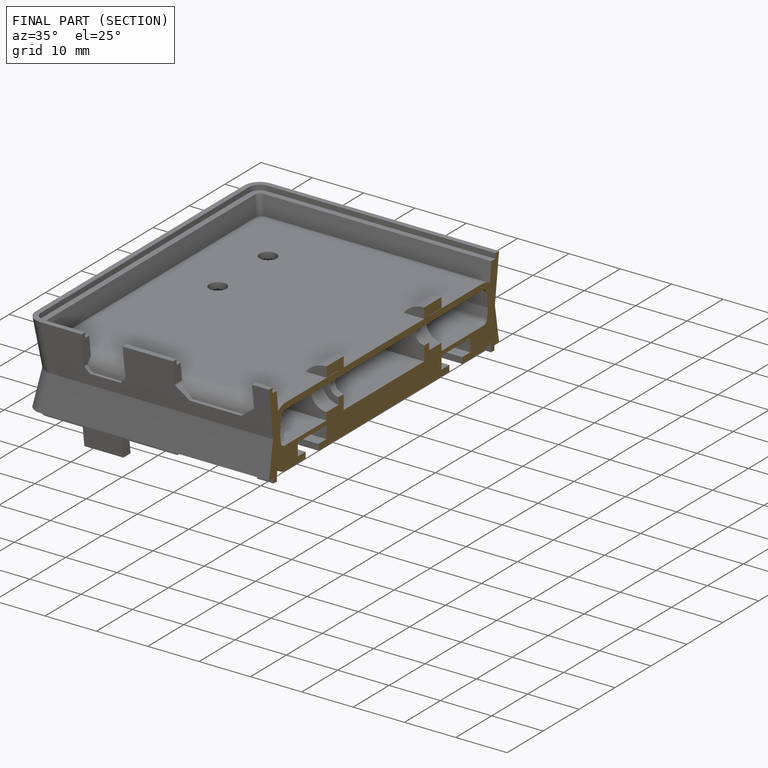
[diagram: finished part — half-section view (interior)]
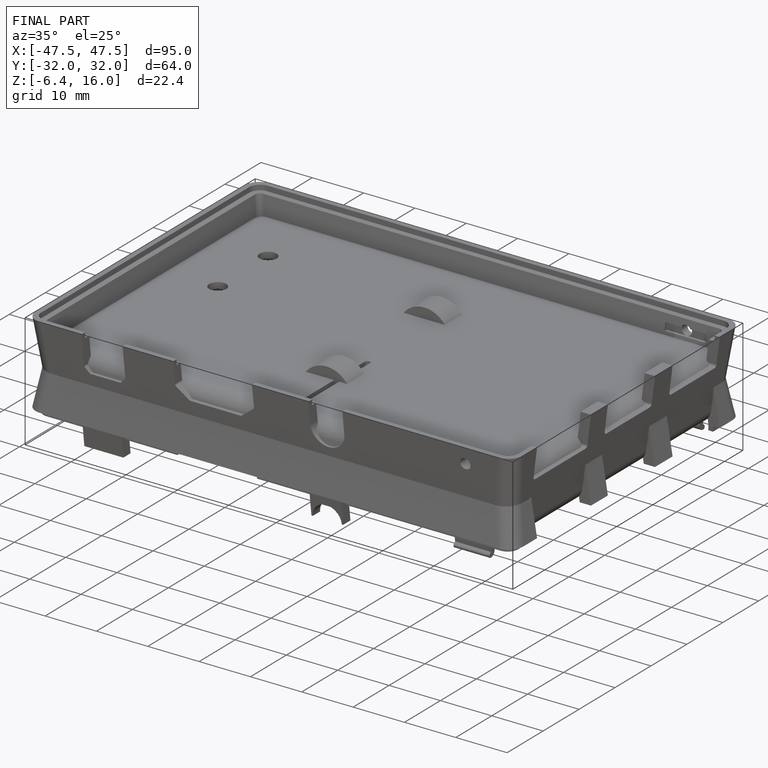
[diagram: finished part — iso view with bounding-box wireframe]
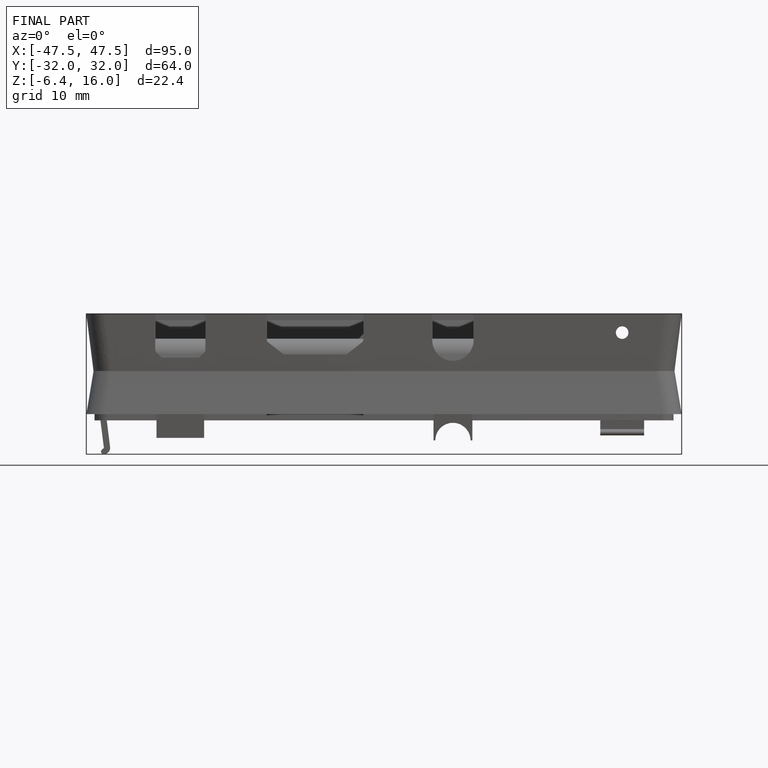
[diagram: finished part — front view with bounding-box wireframe]
